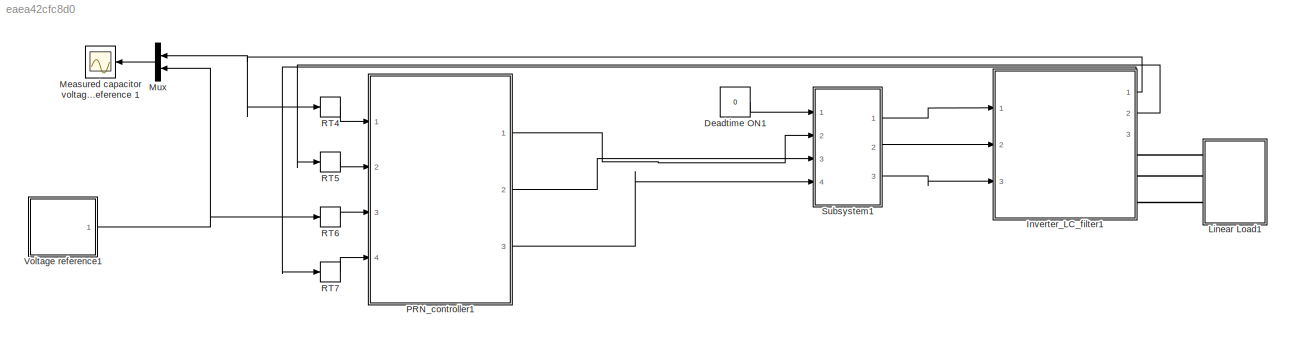
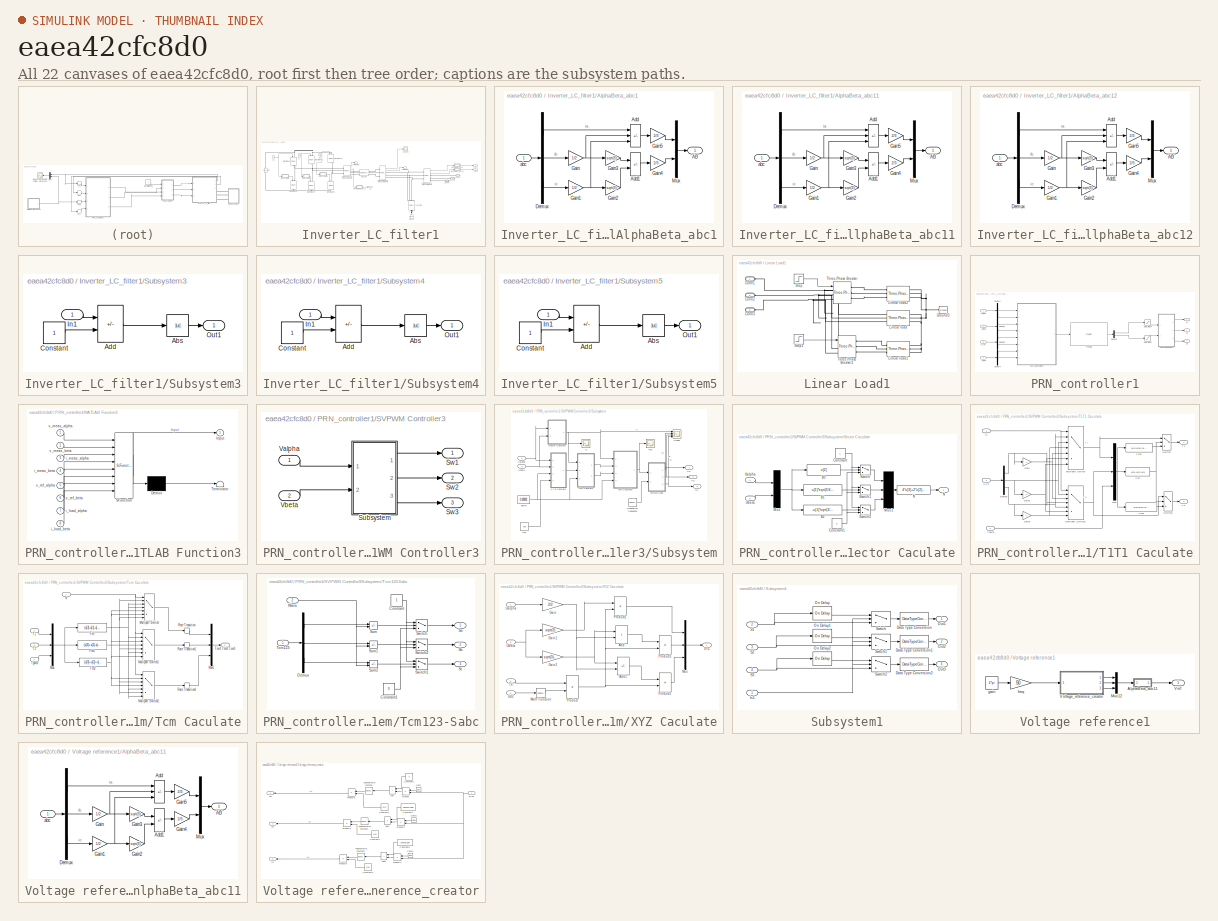
[diagram: thumbnail index - all 22 canvases of the model, root first then tree order]
MODEL slx_eaea42cfc8d0
KIND model
CONFIG AbsTol = auto
CONFIG EnableMultiTasking = off
CONFIG FixedStep = auto
CONFIG MaxStep = auto
CONFIG MinStep = auto
CONFIG RelTol = 1e-3
CONFIG SampleTimeConstraint = Unconstrained
CONFIG SolverName = VariableStepAuto
CONFIG StartTime = 0.0
CONFIG StopTime = 10.0
BLOCK [Constant] Deadtime ON1
  Value = 0
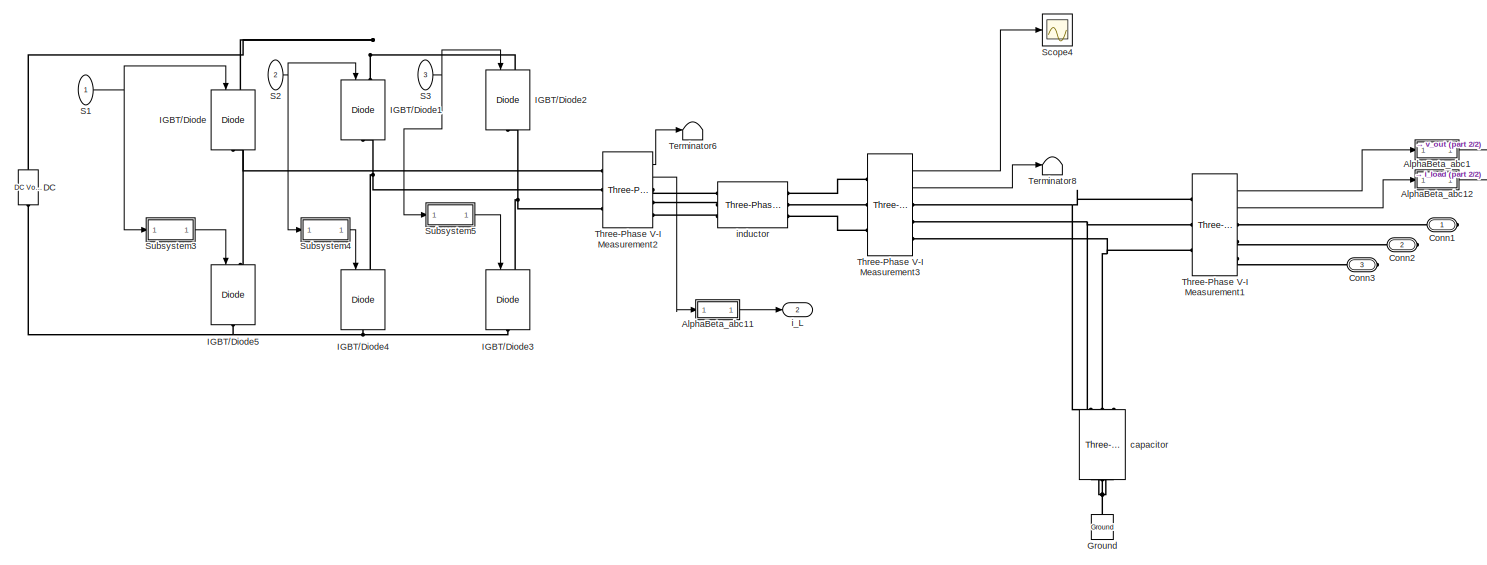
[diagram: Inverter_LC_filter1 - part 1/2, most of the canvas]
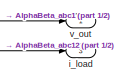
[diagram: Inverter_LC_filter1 - part 2/2, top right region]
BLOCK [SubSystem] Inverter_LC_filter1
  Ports = [3, 3, 0, 0, 0, 0, 3]
  RequestExecContextInheritance = off
BLOCK [SubSystem] Inverter_LC_filter1/AlphaBeta_abc1
  NameLocation = top
  Ports = [1, 1]
  RequestExecContextInheritance = off
BLOCK [Outport] Inverter_LC_filter1/AlphaBeta_abc1/AB
  VectorParamsAs1DForOutWhenUnconnected = off
BLOCK [Sum] Inverter_LC_filter1/AlphaBeta_abc1/Add
  IconShape = rectangular
  Inputs = +--
  Ports = [3, 1]
BLOCK [Sum] Inverter_LC_filter1/AlphaBeta_abc1/Add1
  IconShape = rectangular
  Inputs = +-
  Ports = [2, 1]
BLOCK [Demux] Inverter_LC_filter1/AlphaBeta_abc1/Demux
  Outputs = 3
  Ports = [1, 3]
BLOCK [Gain] Inverter_LC_filter1/AlphaBeta_abc1/Gain
  Gain = 1/2
BLOCK [Gain] Inverter_LC_filter1/AlphaBeta_abc1/Gain1
  Gain = 1/2
BLOCK [Gain] Inverter_LC_filter1/AlphaBeta_abc1/Gain2
  Gain = sqrt(3)
BLOCK [Gain] Inverter_LC_filter1/AlphaBeta_abc1/Gain3
  Gain = sqrt(3)
BLOCK [Gain] Inverter_LC_filter1/AlphaBeta_abc1/Gain4
  Gain = 2/3
BLOCK [Gain] Inverter_LC_filter1/AlphaBeta_abc1/Gain5
  Gain = 2/3
BLOCK [Mux] Inverter_LC_filter1/AlphaBeta_abc1/Mux
  DisplayOption = bar
  Inputs = 2
  Ports = [2, 1]
BLOCK [Inport] Inverter_LC_filter1/AlphaBeta_abc1/abc
BLOCK [SubSystem] Inverter_LC_filter1/AlphaBeta_abc11
  NameLocation = top
  Ports = [1, 1]
  RequestExecContextInheritance = off
BLOCK [Outport] Inverter_LC_filter1/AlphaBeta_abc11/AB
  VectorParamsAs1DForOutWhenUnconnected = off
BLOCK [Sum] Inverter_LC_filter1/AlphaBeta_abc11/Add
  IconShape = rectangular
  Inputs = +--
  Ports = [3, 1]
BLOCK [Sum] Inverter_LC_filter1/AlphaBeta_abc11/Add1
  IconShape = rectangular
  Inputs = +-
  Ports = [2, 1]
BLOCK [Demux] Inverter_LC_filter1/AlphaBeta_abc11/Demux
  Outputs = 3
  Ports = [1, 3]
BLOCK [Gain] Inverter_LC_filter1/AlphaBeta_abc11/Gain
  Gain = 1/2
BLOCK [Gain] Inverter_LC_filter1/AlphaBeta_abc11/Gain1
  Gain = 1/2
BLOCK [Gain] Inverter_LC_filter1/AlphaBeta_abc11/Gain2
  Gain = sqrt(3)
BLOCK [Gain] Inverter_LC_filter1/AlphaBeta_abc11/Gain3
  Gain = sqrt(3)
BLOCK [Gain] Inverter_LC_filter1/AlphaBeta_abc11/Gain4
  Gain = 2/3
BLOCK [Gain] Inverter_LC_filter1/AlphaBeta_abc11/Gain5
  Gain = 2/3
BLOCK [Mux] Inverter_LC_filter1/AlphaBeta_abc11/Mux
  DisplayOption = bar
  Inputs = 2
  Ports = [2, 1]
BLOCK [Inport] Inverter_LC_filter1/AlphaBeta_abc11/abc
BLOCK [SubSystem] Inverter_LC_filter1/AlphaBeta_abc12
  NameLocation = top
  Ports = [1, 1]
  RequestExecContextInheritance = off
BLOCK [Outport] Inverter_LC_filter1/AlphaBeta_abc12/AB
  VectorParamsAs1DForOutWhenUnconnected = off
BLOCK [Sum] Inverter_LC_filter1/AlphaBeta_abc12/Add
  IconShape = rectangular
  Inputs = +--
  Ports = [3, 1]
BLOCK [Sum] Inverter_LC_filter1/AlphaBeta_abc12/Add1
  IconShape = rectangular
  Inputs = +-
  Ports = [2, 1]
BLOCK [Demux] Inverter_LC_filter1/AlphaBeta_abc12/Demux
  Outputs = 3
  Ports = [1, 3]
BLOCK [Gain] Inverter_LC_filter1/AlphaBeta_abc12/Gain
  Gain = 1/2
BLOCK [Gain] Inverter_LC_filter1/AlphaBeta_abc12/Gain1
  Gain = 1/2
BLOCK [Gain] Inverter_LC_filter1/AlphaBeta_abc12/Gain2
  Gain = sqrt(3)
BLOCK [Gain] Inverter_LC_filter1/AlphaBeta_abc12/Gain3
  Gain = sqrt(3)
BLOCK [Gain] Inverter_LC_filter1/AlphaBeta_abc12/Gain4
  Gain = 2/3
BLOCK [Gain] Inverter_LC_filter1/AlphaBeta_abc12/Gain5
  Gain = 2/3
BLOCK [Mux] Inverter_LC_filter1/AlphaBeta_abc12/Mux
  DisplayOption = bar
  Inputs = 2
  Ports = [2, 1]
BLOCK [Inport] Inverter_LC_filter1/AlphaBeta_abc12/abc
BLOCK [PMIOPort] Inverter_LC_filter1/Conn1
  Side = Right
BLOCK [PMIOPort] Inverter_LC_filter1/Conn2
  Port = 2
  Side = Right
BLOCK [PMIOPort] Inverter_LC_filter1/Conn3
  Port = 3
  Side = Right
BLOCK [Reference] Inverter_LC_filter1/DC  REF=spsDCVoltageSourceLib/DC Voltage Source
  NameLocation = right
  Ports = [0, 0, 0, 0, 0, 1, 1]
  SourceBlock = spsDCVoltageSourceLib/DC Voltage Source
  SourceProductBaseCode = PS
  SourceType = DC Voltage Source
BLOCK [Reference] Inverter_LC_filter1/Ground  REF=spsGroundLib/Ground
  NameLocation = right
  Ports = [0, 0, 0, 0, 0, 1]
  SourceBlock = spsGroundLib/Ground
  SourceProductBaseCode = PS
  SourceType = Ground
BLOCK [Reference] Inverter_LC_filter1/IGBT//Diode  REF=spsIGBTDiodeLib/IGBT//Diode
  NameLocation = left
  Ports = [1, 0, 0, 0, 0, 1, 1]
  SourceBlock = spsIGBTDiodeLib/IGBT//Diode
  SourceProductBaseCode = PS
  SourceType = IGBT/Diode
BLOCK [Reference] Inverter_LC_filter1/IGBT//Diode1  REF=spsIGBTDiodeLib/IGBT//Diode
  NameLocation = left
  Ports = [1, 0, 0, 0, 0, 1, 1]
  SourceBlock = spsIGBTDiodeLib/IGBT//Diode
  SourceProductBaseCode = PS
  SourceType = IGBT/Diode
BLOCK [Reference] Inverter_LC_filter1/IGBT//Diode2  REF=spsIGBTDiodeLib/IGBT//Diode
  NameLocation = left
  Ports = [1, 0, 0, 0, 0, 1, 1]
  SourceBlock = spsIGBTDiodeLib/IGBT//Diode
  SourceProductBaseCode = PS
  SourceType = IGBT/Diode
BLOCK [Reference] Inverter_LC_filter1/IGBT//Diode3  REF=spsIGBTDiodeLib/IGBT//Diode
  NameLocation = left
  Ports = [1, 0, 0, 0, 0, 1, 1]
  SourceBlock = spsIGBTDiodeLib/IGBT//Diode
  SourceProductBaseCode = PS
  SourceType = IGBT/Diode
BLOCK [Reference] Inverter_LC_filter1/IGBT//Diode4  REF=spsIGBTDiodeLib/IGBT//Diode
  NameLocation = left
  Ports = [1, 0, 0, 0, 0, 1, 1]
  SourceBlock = spsIGBTDiodeLib/IGBT//Diode
  SourceProductBaseCode = PS
  SourceType = IGBT/Diode
BLOCK [Reference] Inverter_LC_filter1/IGBT//Diode5  REF=spsIGBTDiodeLib/IGBT//Diode
  NameLocation = left
  Ports = [1, 0, 0, 0, 0, 1, 1]
  SourceBlock = spsIGBTDiodeLib/IGBT//Diode
  SourceProductBaseCode = PS
  SourceType = IGBT/Diode
BLOCK [Inport] Inverter_LC_filter1/S1
  NameLocation = top
BLOCK [Inport] Inverter_LC_filter1/S2
  NameLocation = top
  Port = 2
BLOCK [Inport] Inverter_LC_filter1/S3
  NameLocation = top
  Port = 3
BLOCK [Scope] Inverter_LC_filter1/Scope4
  Floating = off
  NumInputPorts = 1
  Ports = [1]
  ScopeSpecificationString = Simulink.scopes.TimeScopeBlockCfg('CurrentConfiguration', extmgr.ConfigurationSet(extmgr.Configuration('Core','General UI',true),extmgr.Configuration('Core','Source UI',true),extmgr.Configuration('Sources','WiredSimulink',true,'DataLoggingVariableName','v_phase','DataLogging',true,'DataLoggingSaveFormat','Array'),extmgr.Configuration('Visuals','Time Domain',true,'SerializedDisplays',{struct('MinYL...<+1600ch>
BLOCK [SubSystem] Inverter_LC_filter1/Subsystem3
  Ports = [1, 1]
  RequestExecContextInheritance = off
BLOCK [Abs] Inverter_LC_filter1/Subsystem3/Abs
  SaturateOnIntegerOverflow = off
BLOCK [Sum] Inverter_LC_filter1/Subsystem3/Add
  IconShape = rectangular
  Inputs = +-
  Ports = [2, 1]
BLOCK [Constant] Inverter_LC_filter1/Subsystem3/Constant
BLOCK [Inport] Inverter_LC_filter1/Subsystem3/In1
BLOCK [Outport] Inverter_LC_filter1/Subsystem3/Out1
  VectorParamsAs1DForOutWhenUnconnected = off
BLOCK [SubSystem] Inverter_LC_filter1/Subsystem4
  Ports = [1, 1]
  RequestExecContextInheritance = off
BLOCK [Abs] Inverter_LC_filter1/Subsystem4/Abs
  SaturateOnIntegerOverflow = off
BLOCK [Sum] Inverter_LC_filter1/Subsystem4/Add
  IconShape = rectangular
  Inputs = +-
  Ports = [2, 1]
BLOCK [Constant] Inverter_LC_filter1/Subsystem4/Constant
BLOCK [Inport] Inverter_LC_filter1/Subsystem4/In1
BLOCK [Outport] Inverter_LC_filter1/Subsystem4/Out1
  VectorParamsAs1DForOutWhenUnconnected = off
BLOCK [SubSystem] Inverter_LC_filter1/Subsystem5
  Ports = [1, 1]
  RequestExecContextInheritance = off
BLOCK [Abs] Inverter_LC_filter1/Subsystem5/Abs
  SaturateOnIntegerOverflow = off
BLOCK [Sum] Inverter_LC_filter1/Subsystem5/Add
  IconShape = rectangular
  Inputs = +-
  Ports = [2, 1]
BLOCK [Constant] Inverter_LC_filter1/Subsystem5/Constant
BLOCK [Inport] Inverter_LC_filter1/Subsystem5/In1
BLOCK [Outport] Inverter_LC_filter1/Subsystem5/Out1
  VectorParamsAs1DForOutWhenUnconnected = off
BLOCK [Terminator] Inverter_LC_filter1/Terminator6
BLOCK [Terminator] Inverter_LC_filter1/Terminator8
BLOCK [Reference] Inverter_LC_filter1/Three-Phase V-I Measurement1  REF=spsThreePhaseVIMeasurementLib/Three-Phase
V-I Measurement
  Ports = [0, 2, 0, 0, 0, 3, 3]
  SourceBlock = spsThreePhaseVIMeasurementLib/Three-Phase\nV-I Measurement
  SourceProductBaseCode = PS
  SourceType = Three-Phase VI Measurement
BLOCK [Reference] Inverter_LC_filter1/Three-Phase V-I Measurement2  REF=spsThreePhaseVIMeasurementLib/Three-Phase
V-I Measurement
  Ports = [0, 2, 0, 0, 0, 3, 3]
  SourceBlock = spsThreePhaseVIMeasurementLib/Three-Phase\nV-I Measurement
  SourceProductBaseCode = PS
  SourceType = Three-Phase VI Measurement
BLOCK [Reference] Inverter_LC_filter1/Three-Phase V-I Measurement3  REF=spsThreePhaseVIMeasurementLib/Three-Phase
V-I Measurement
  Ports = [0, 2, 0, 0, 0, 3, 3]
  SourceBlock = spsThreePhaseVIMeasurementLib/Three-Phase\nV-I Measurement
  SourceProductBaseCode = PS
  SourceType = Three-Phase VI Measurement
BLOCK [Reference] Inverter_LC_filter1/capacitor  REF=spsThreePhaseSeriesRLCBranchLib/Three-Phase
Series RLC Branch
  AttributesFormatString = \n
  NameLocation = left
  Ports = [0, 0, 0, 0, 0, 3, 3]
  SourceBlock = spsThreePhaseSeriesRLCBranchLib/Three-Phase\nSeries RLC Branch
  SourceProductBaseCode = PS
  SourceType = Three-Phase Series RLC Branch
BLOCK [Outport] Inverter_LC_filter1/i_L
  Port = 2
  VectorParamsAs1DForOutWhenUnconnected = off
BLOCK [Outport] Inverter_LC_filter1/i_load
  Port = 3
  VectorParamsAs1DForOutWhenUnconnected = off
BLOCK [Reference] Inverter_LC_filter1/inductor  REF=spsThreePhaseSeriesRLCBranchLib/Three-Phase
Series RLC Branch
  AttributesFormatString = \n
  Ports = [0, 0, 0, 0, 0, 3, 3]
  SourceBlock = spsThreePhaseSeriesRLCBranchLib/Three-Phase\nSeries RLC Branch
  SourceProductBaseCode = PS
  SourceType = Three-Phase Series RLC Branch
BLOCK [Outport] Inverter_LC_filter1/v_out
  VectorParamsAs1DForOutWhenUnconnected = off
BLOCK [SubSystem] Linear Load1
  Ports = [0, 0, 0, 0, 0, 3]
  RequestExecContextInheritance = off
BLOCK [PMIOPort] Linear Load1/Conn1
  Side = Left
BLOCK [PMIOPort] Linear Load1/Conn2
  Port = 2
  Side = Left
BLOCK [PMIOPort] Linear Load1/Conn3
  Port = 3
  Side = Left
BLOCK [Reference] Linear Load1/Ground3  REF=spsGroundLib/Ground
  NameLocation = top
  Ports = [0, 0, 0, 0, 0, 1]
  SourceBlock = spsGroundLib/Ground
  SourceProductBaseCode = PS
  SourceType = Ground
BLOCK [Reference] Linear Load1/Linear load  REF=spsThreePhaseSeriesRLCBranchLib/Three-Phase
Series RLC Branch
  AttributesFormatString = \n
  Ports = [0, 0, 0, 0, 0, 3, 3]
  SourceBlock = spsThreePhaseSeriesRLCBranchLib/Three-Phase\nSeries RLC Branch
  SourceProductBaseCode = PS
  SourceType = Three-Phase Series RLC Branch
BLOCK [Reference] Linear Load1/Linear load1  REF=spsThreePhaseSeriesRLCBranchLib/Three-Phase
Series RLC Branch
  AttributesFormatString = \n
  Ports = [0, 0, 0, 0, 0, 3, 3]
  SourceBlock = spsThreePhaseSeriesRLCBranchLib/Three-Phase\nSeries RLC Branch
  SourceProductBaseCode = PS
  SourceType = Three-Phase Series RLC Branch
BLOCK [Reference] Linear Load1/Linear load2  REF=spsThreePhaseSeriesRLCBranchLib/Three-Phase
Series RLC Branch
  AttributesFormatString = \n
  Ports = [0, 0, 0, 0, 0, 3, 3]
  SourceBlock = spsThreePhaseSeriesRLCBranchLib/Three-Phase\nSeries RLC Branch
  SourceProductBaseCode = PS
  SourceType = Three-Phase Series RLC Branch
BLOCK [Step] Linear Load1/Step
  SampleTime = 0
  Time = 0.04
BLOCK [Step] Linear Load1/Step1
  SampleTime = 0
  Time = 0.07
BLOCK [Reference] Linear Load1/Three-Phase Breaker  REF=spsThreePhaseBreakerLib/Three-Phase Breaker
  Ports = [1, 0, 0, 0, 0, 3, 3]
  SourceBlock = spsThreePhaseBreakerLib/Three-Phase Breaker
  SourceProductBaseCode = PS
  SourceType = Three-Phase Breaker
BLOCK [Reference] Linear Load1/Three-Phase Breaker1  REF=spsThreePhaseBreakerLib/Three-Phase Breaker
  Ports = [1, 0, 0, 0, 0, 3, 3]
  SourceBlock = spsThreePhaseBreakerLib/Three-Phase Breaker
  SourceProductBaseCode = PS
  SourceType = Three-Phase Breaker
BLOCK [Scope] Measured capacitor voltage and reference 1
  Floating = off
  NameLocation = top
  NumInputPorts = 1
  Ports = [1]
  ScopeSpecificationString = Simulink.scopes.TimeScopeBlockCfg('CurrentConfiguration', extmgr.ConfigurationSet(extmgr.Configuration('Core','General UI',true,'FigureColor',[0 0 0]),extmgr.Configuration('Core','Source UI',true),extmgr.Configuration('Sources','WiredSimulink',true,'DataLoggingVariableName','ScopeData1','DataLogging',true),extmgr.Configuration('Visuals','Time Domain',true,'SerializedDisplays',{struct('MinYLimReal'...<+1583ch>
BLOCK [Mux] Mux
  DisplayOption = bar
  Inputs = 2
  NameLocation = top
  Ports = [2, 1]
BLOCK [SubSystem] PRN_controller1
  Ports = [4, 3]
  RequestExecContextInheritance = off
  SystemSampleTime = Ts
BLOCK [Demux] PRN_controller1/Demux1
  Outputs = 2
  Ports = [1, 2]
BLOCK [Demux] PRN_controller1/Demux2
  Outputs = 2
  Ports = [1, 2]
BLOCK [Demux] PRN_controller1/Demux3
  Outputs = 2
  Ports = [1, 2]
BLOCK [Demux] PRN_controller1/Demux4
  Outputs = 2
  Ports = [1, 2]
BLOCK [Demux] PRN_controller1/Demux5
  Outputs = 2
  Ports = [1, 2]
BLOCK [Inport] PRN_controller1/I_meas
  Port = 2
BLOCK [SubSystem] PRN_controller1/MATLAB Function3
  ErrorFcn = Stateflow.Translate.translate
  PermitHierarchicalResolution = ExplicitOnly
  Ports = [8, 1]
  RequestExecContextInheritance = off
  SFBlockType = MATLAB Function
  SystemSampleTime = 1e-5
  TreatAsAtomicUnit = on
BLOCK [Demux] PRN_controller1/MATLAB Function3/ Demux 
  Outputs = 1
  Ports = [1, 1]
BLOCK [S-Function] PRN_controller1/MATLAB Function3/ SFunction 
  EnableBusSupport = on
  FunctionName = sf_sfun
  PortCounts = [8 2]
  Ports = [8, 2]
  SFcnIsStateOwnerBlock = off
  SFunctionDeploymentMode = off
  Tag = Stateflow S-Function 39
BLOCK [Terminator] PRN_controller1/MATLAB Function3/ Terminator 
BLOCK [Outport] PRN_controller1/MATLAB Function3/Input
BLOCK [Inport] PRN_controller1/MATLAB Function3/i_load_alpha
  Port = 7
BLOCK [Inport] PRN_controller1/MATLAB Function3/i_load_beta
  Port = 8
BLOCK [Inport] PRN_controller1/MATLAB Function3/i_meas_alpha
  Port = 3
BLOCK [Inport] PRN_controller1/MATLAB Function3/i_meas_beta
  Port = 4
BLOCK [Inport] PRN_controller1/MATLAB Function3/v_meas_alpha
BLOCK [Inport] PRN_controller1/MATLAB Function3/v_meas_beta
  Port = 2
BLOCK [Inport] PRN_controller1/MATLAB Function3/v_ref_alpha
  Port = 5
BLOCK [Inport] PRN_controller1/MATLAB Function3/v_ref_beta
  Port = 6
BLOCK [Reference] PRN_controller1/Predict1  REF=deeplib/Predict
  Ports = [1, 1]
  SourceBlock = deeplib/Predict
  SourceProductBaseCode = NN
  SourceType = Predict
BLOCK [Outport] PRN_controller1/S1
  VectorParamsAs1DForOutWhenUnconnected = off
BLOCK [Outport] PRN_controller1/S2
  Port = 2
  VectorParamsAs1DForOutWhenUnconnected = off
BLOCK [Outport] PRN_controller1/S3
  Port = 3
  VectorParamsAs1DForOutWhenUnconnected = off
BLOCK [SubSystem] PRN_controller1/SVPWM Controller3
  Ports = [2, 3]
  RequestExecContextInheritance = off
BLOCK [SubSystem] PRN_controller1/SVPWM Controller3/Subsystem
  Ports = [2, 3]
  RequestExecContextInheritance = off
BLOCK [Scope] PRN_controller1/SVPWM Controller3/Subsystem/N
  Floating = off
  NumInputPorts = 1
  Ports = [1]
  ScopeSpecificationString = Simulink.scopes.TimeScopeBlockCfg('CurrentConfiguration', extmgr.ConfigurationSet(extmgr.Configuration('Core','General UI',true),extmgr.Configuration('Core','Source UI',true),extmgr.Configuration('Sources','WiredSimulink',true,'DataLogging',true,'DataLoggingVariableName','N','DataLoggingSaveFormat','StructureWithTime','SampleTime','0','DataLoggingDecimation','1','DataLoggingDecimateData',true),ext...<+1697ch>
BLOCK [Reference] PRN_controller1/SVPWM Controller3/Subsystem/Repeating Sequence  REF=simulink/Sources/Repeating
Sequence
  Ports = [0, 1]
  SourceBlock = simulink/Sources/Repeating\nSequence
  SourceProductBaseCode = SL
  SourceType = Repeating table
BLOCK [Outport] PRN_controller1/SVPWM Controller3/Subsystem/Sa
BLOCK [Outport] PRN_controller1/SVPWM Controller3/Subsystem/Sb
  Port = 2
BLOCK [Outport] PRN_controller1/SVPWM Controller3/Subsystem/Sc
  Port = 3
BLOCK [Scope] PRN_controller1/SVPWM Controller3/Subsystem/Scope
  Floating = off
  NumInputPorts = 4
  Ports = [4]
  ScopeSpecificationString = Simulink.scopes.TimeScopeBlockCfg('CurrentConfiguration', extmgr.ConfigurationSet(extmgr.Configuration('Core','General UI',true),extmgr.Configuration('Core','Source UI',true),extmgr.Configuration('Sources','WiredSimulink',true),extmgr.Configuration('Visuals','Time Domain',true,'SerializedDisplays',{struct('MinYLimReal','-0.75','MaxYLimReal','6.75','YLabelReal','','MinYLimMag','0.00000','MaxYLimMag...<+3335ch>
BLOCK [SubSystem] PRN_controller1/SVPWM Controller3/Subsystem/Sector Caculate
  Ports = [2, 1]
  RequestExecContextInheritance = off
BLOCK [Fcn] PRN_controller1/SVPWM Controller3/Subsystem/Sector Caculate/B0
  Expr = u[2]
BLOCK [Fcn] PRN_controller1/SVPWM Controller3/Subsystem/Sector Caculate/B1
  Expr = u[1]*sqrt(3/4)-0.5*u[2]
BLOCK [Fcn] PRN_controller1/SVPWM Controller3/Subsystem/Sector Caculate/B2
  Expr = -u[1]*sqrt(3/4)-u[2]*0.5
BLOCK [Constant] PRN_controller1/SVPWM Controller3/Subsystem/Sector Caculate/Constant
BLOCK [Constant] PRN_controller1/SVPWM Controller3/Subsystem/Sector Caculate/Constant1
  Value = 0
BLOCK [Mux] PRN_controller1/SVPWM Controller3/Subsystem/Sector Caculate/Mux
  Inputs = 2
  Ports = [2, 1]
BLOCK [Mux] PRN_controller1/SVPWM Controller3/Subsystem/Sector Caculate/Mux1
  Inputs = 3
  Ports = [3, 1]
BLOCK [Fcn] PRN_controller1/SVPWM Controller3/Subsystem/Sector Caculate/N
  Expr = 4*u[3]+2*u[2]+u[1]
BLOCK [Outport] PRN_controller1/SVPWM Controller3/Subsystem/Sector Caculate/N 
BLOCK [Switch] PRN_controller1/SVPWM Controller3/Subsystem/Sector Caculate/Switch
  InputSameDT = off
  SaturateOnIntegerOverflow = off
BLOCK [Switch] PRN_controller1/SVPWM Controller3/Subsystem/Sector Caculate/Switch1
  InputSameDT = off
  SaturateOnIntegerOverflow = off
BLOCK [Switch] PRN_controller1/SVPWM Controller3/Subsystem/Sector Caculate/Switch2
  InputSameDT = off
  SaturateOnIntegerOverflow = off
BLOCK [Inport] PRN_controller1/SVPWM Controller3/Subsystem/Sector Caculate/Ualpha
BLOCK [Inport] PRN_controller1/SVPWM Controller3/Subsystem/Sector Caculate/Ubeta
  Port = 2
BLOCK [SubSystem] PRN_controller1/SVPWM Controller3/Subsystem/T1T1 Caculate
  Ports = [3, 2]
  RequestExecContextInheritance = off
BLOCK [Demux] PRN_controller1/SVPWM Controller3/Subsystem/T1T1 Caculate/Demux
  Outputs = 3
  Ports = [1, 3]
BLOCK [Fcn] PRN_controller1/SVPWM Controller3/Subsystem/T1T1 Caculate/Fcn
  Expr = u(3)-u(2)-u(1)
BLOCK [Fcn] PRN_controller1/SVPWM Controller3/Subsystem/T1T1 Caculate/Fcn1
  Expr = u(1)*u(3)/(u(1)+u(2))
BLOCK [Fcn] PRN_controller1/SVPWM Controller3/Subsystem/T1T1 Caculate/Fcn2
  Expr = u(2)*u(3)/(u(1)+u(2))
BLOCK [Gain] PRN_controller1/SVPWM Controller3/Subsystem/T1T1 Caculate/Gain
  Gain = -1
BLOCK [Gain] PRN_controller1/SVPWM Controller3/Subsystem/T1T1 Caculate/Gain1
  Gain = -1
BLOCK [Gain] PRN_controller1/SVPWM Controller3/Subsystem/T1T1 Caculate/Gain2
  Gain = -1
BLOCK [MultiPortSwitch] PRN_controller1/SVPWM Controller3/Subsystem/T1T1 Caculate/Multiport Switch
  InputSameDT = off
  Inputs = 6
  Ports = [7, 1]
  SaturateOnIntegerOverflow = off
BLOCK [MultiPortSwitch] PRN_controller1/SVPWM Controller3/Subsystem/T1T1 Caculate/Multiport Switch1
  InputSameDT = off
  Inputs = 6
  Ports = [7, 1]
  SaturateOnIntegerOverflow = off
BLOCK [Mux] PRN_controller1/SVPWM Controller3/Subsystem/T1T1 Caculate/Mux
  DisplayOption = bar
  Inputs = 3
  Ports = [3, 1]
BLOCK [Inport] PRN_controller1/SVPWM Controller3/Subsystem/T1T1 Caculate/N
BLOCK [Switch] PRN_controller1/SVPWM Controller3/Subsystem/T1T1 Caculate/Switch
  InputSameDT = off
  SaturateOnIntegerOverflow = off
BLOCK [Switch] PRN_controller1/SVPWM Controller3/Subsystem/T1T1 Caculate/Switch1
  Criteria = u2 > Threshold
  InputSameDT = off
  SaturateOnIntegerOverflow = off
BLOCK [Outport] PRN_controller1/SVPWM Controller3/Subsystem/T1T1 Caculate/T1
BLOCK [Outport] PRN_controller1/SVPWM Controller3/Subsystem/T1T1 Caculate/T2
  Port = 2
BLOCK [Inport] PRN_controller1/SVPWM Controller3/Subsystem/T1T1 Caculate/Tpwm
  Port = 3
BLOCK [Inport] PRN_controller1/SVPWM Controller3/Subsystem/T1T1 Caculate/XYZ
  Port = 2
BLOCK [Scope] PRN_controller1/SVPWM Controller3/Subsystem/Tcm
  Floating = off
  NumInputPorts = 1
  Ports = [1]
  ScopeSpecificationString = Simulink.scopes.TimeScopeBlockCfg('CurrentConfiguration', extmgr.ConfigurationSet(extmgr.Configuration('Core','General UI',true),extmgr.Configuration('Core','Source UI',true),extmgr.Configuration('Sources','WiredSimulink',true,'DataLogging',true,'DataLoggingVariableName','Tcm','DataLoggingSaveFormat','StructureWithTime','SampleTime','0','DataLoggingDecimation','1','DataLoggingDecimateData',true),e...<+1769ch>
BLOCK [SubSystem] PRN_controller1/SVPWM Controller3/Subsystem/Tcm Caculate
  Ports = [4, 1]
  RequestExecContextInheritance = off
BLOCK [Fcn] PRN_controller1/SVPWM Controller3/Subsystem/Tcm Caculate/Fcn
  Expr = (u[3]-u[1]-u[2])/4
BLOCK [Fcn] PRN_controller1/SVPWM Controller3/Subsystem/Tcm Caculate/Fcn1
  Expr = (u[3]+u[1]-u[2])/4
BLOCK [Fcn] PRN_controller1/SVPWM Controller3/Subsystem/Tcm Caculate/Fcn2
  Expr = (u[3]+u[2]+u[1])/4
BLOCK [MultiPortSwitch] PRN_controller1/SVPWM Controller3/Subsystem/Tcm Caculate/Multiport Switch
  InputSameDT = off
  Inputs = 6
  Ports = [7, 1]
  SaturateOnIntegerOverflow = off
BLOCK [MultiPortSwitch] PRN_controller1/SVPWM Controller3/Subsystem/Tcm Caculate/Multiport Switch1
  InputSameDT = off
  Inputs = 6
  Ports = [7, 1]
  SaturateOnIntegerOverflow = off
BLOCK [MultiPortSwitch] PRN_controller1/SVPWM Controller3/Subsystem/Tcm Caculate/Multiport Switch2
  InputSameDT = off
  Inputs = 6
  Ports = [7, 1]
  SaturateOnIntegerOverflow = off
BLOCK [Mux] PRN_controller1/SVPWM Controller3/Subsystem/Tcm Caculate/Mux
  DisplayOption = bar
  Inputs = 3
  Ports = [3, 1]
BLOCK [Mux] PRN_controller1/SVPWM Controller3/Subsystem/Tcm Caculate/Mux1
  DisplayOption = bar
  Inputs = 3
  Ports = [3, 1]
BLOCK [Inport] PRN_controller1/SVPWM Controller3/Subsystem/Tcm Caculate/N
BLOCK [RateTransition] PRN_controller1/SVPWM Controller3/Subsystem/Tcm Caculate/Rate Transition
  OutPortSampleTime = 2e-6
BLOCK [RateTransition] PRN_controller1/SVPWM Controller3/Subsystem/Tcm Caculate/Rate Transition1
  OutPortSampleTime = 2e-6
BLOCK [RateTransition] PRN_controller1/SVPWM Controller3/Subsystem/Tcm Caculate/Rate Transition2
  OutPortSampleTime = 2e-6
BLOCK [Inport] PRN_controller1/SVPWM Controller3/Subsystem/Tcm Caculate/T1
  Port = 2
BLOCK [Inport] PRN_controller1/SVPWM Controller3/Subsystem/Tcm Caculate/T2
  Port = 3
BLOCK [Outport] PRN_controller1/SVPWM Controller3/Subsystem/Tcm Caculate/Tcm1 Tcm2 Tcm3
BLOCK [Inport] PRN_controller1/SVPWM Controller3/Subsystem/Tcm Caculate/Tpwm
  Port = 4
BLOCK [SubSystem] PRN_controller1/SVPWM Controller3/Subsystem/Tcm123-Sabc
  Ports = [2, 3]
  RequestExecContextInheritance = off
BLOCK [Constant] PRN_controller1/SVPWM Controller3/Subsystem/Tcm123-Sabc/Constant
BLOCK [Constant] PRN_controller1/SVPWM Controller3/Subsystem/Tcm123-Sabc/Constant1
  Value = 0
BLOCK [Demux] PRN_controller1/SVPWM Controller3/Subsystem/Tcm123-Sabc/Demux
  Outputs = 3
  Ports = [1, 3]
BLOCK [Outport] PRN_controller1/SVPWM Controller3/Subsystem/Tcm123-Sabc/Sa
BLOCK [Outport] PRN_controller1/SVPWM Controller3/Subsystem/Tcm123-Sabc/Sb
  Port = 2
BLOCK [Outport] PRN_controller1/SVPWM Controller3/Subsystem/Tcm123-Sabc/Sc
  Port = 3
BLOCK [Sum] PRN_controller1/SVPWM Controller3/Subsystem/Tcm123-Sabc/Sum
  IconShape = rectangular
  Inputs = -+
  Ports = [2, 1]
  SaturateOnIntegerOverflow = on
BLOCK [Sum] PRN_controller1/SVPWM Controller3/Subsystem/Tcm123-Sabc/Sum1
  IconShape = rectangular
  Inputs = -+
  Ports = [2, 1]
  SaturateOnIntegerOverflow = on
BLOCK [Sum] PRN_controller1/SVPWM Controller3/Subsystem/Tcm123-Sabc/Sum2
  IconShape = rectangular
  Inputs = -+
  Ports = [2, 1]
  SaturateOnIntegerOverflow = on
BLOCK [Switch] PRN_controller1/SVPWM Controller3/Subsystem/Tcm123-Sabc/Switch
  InputSameDT = off
BLOCK [Switch] PRN_controller1/SVPWM Controller3/Subsystem/Tcm123-Sabc/Switch1
  InputSameDT = off
BLOCK [Switch] PRN_controller1/SVPWM Controller3/Subsystem/Tcm123-Sabc/Switch2
  InputSameDT = off
BLOCK [Inport] PRN_controller1/SVPWM Controller3/Subsystem/Tcm123-Sabc/Tcm123
BLOCK [Inport] PRN_controller1/SVPWM Controller3/Subsystem/Tcm123-Sabc/Wave
  Port = 2
BLOCK [Constant] PRN_controller1/SVPWM Controller3/Subsystem/Tpwm
  Value = 0.00002
BLOCK [Inport] PRN_controller1/SVPWM Controller3/Subsystem/Ualpha
BLOCK [Inport] PRN_controller1/SVPWM Controller3/Subsystem/Ubeta
  Port = 2
BLOCK [Constant] PRN_controller1/SVPWM Controller3/Subsystem/Udc
  Value = Vdc
BLOCK [SubSystem] PRN_controller1/SVPWM Controller3/Subsystem/XYZ Caculate
  Ports = [4, 1]
  RequestExecContextInheritance = off
BLOCK [Sum] PRN_controller1/SVPWM Controller3/Subsystem/XYZ Caculate/Add
  IconShape = rectangular
  Ports = [2, 1]
BLOCK [Sum] PRN_controller1/SVPWM Controller3/Subsystem/XYZ Caculate/Add1
  IconShape = rectangular
  Inputs = +-
  Ports = [2, 1]
BLOCK [Gain] PRN_controller1/SVPWM Controller3/Subsystem/XYZ Caculate/Gain
  Gain = 3/2
BLOCK [Gain] PRN_controller1/SVPWM Controller3/Subsystem/XYZ Caculate/Gain1
  Gain = sqrt(3)
BLOCK [Gain] PRN_controller1/SVPWM Controller3/Subsystem/XYZ Caculate/Gain2
  Gain = sqrt(3)/2
BLOCK [Math] PRN_controller1/SVPWM Controller3/Subsystem/XYZ Caculate/Math Function
  Operator = reciprocal
  Ports = [1, 1]
  SignedPower = on
BLOCK [Mux] PRN_controller1/SVPWM Controller3/Subsystem/XYZ Caculate/Mux
  DisplayOption = bar
  Inputs = 3
  Ports = [3, 1]
BLOCK [Product] PRN_controller1/SVPWM Controller3/Subsystem/XYZ Caculate/Product
  Ports = [2, 1]
  RndMeth = Zero
BLOCK [Product] PRN_controller1/SVPWM Controller3/Subsystem/XYZ Caculate/Product1
  Ports = [2, 1]
  RndMeth = Zero
BLOCK [Product] PRN_controller1/SVPWM Controller3/Subsystem/XYZ Caculate/Product2
  Ports = [2, 1]
  RndMeth = Zero
BLOCK [Product] PRN_controller1/SVPWM Controller3/Subsystem/XYZ Caculate/Product3
  Ports = [2, 1]
  RndMeth = Zero
BLOCK [Inport] PRN_controller1/SVPWM Controller3/Subsystem/XYZ Caculate/Ts
  Port = 3
BLOCK [Inport] PRN_controller1/SVPWM Controller3/Subsystem/XYZ Caculate/Ualpha
BLOCK [Inport] PRN_controller1/SVPWM Controller3/Subsystem/XYZ Caculate/Ubeta
  Port = 2
BLOCK [Inport] PRN_controller1/SVPWM Controller3/Subsystem/XYZ Caculate/Udc
  Port = 4
BLOCK [Outport] PRN_controller1/SVPWM Controller3/Subsystem/XYZ Caculate/XYZ
BLOCK [Outport] PRN_controller1/SVPWM Controller3/Sw1
  VectorParamsAs1DForOutWhenUnconnected = off
BLOCK [Outport] PRN_controller1/SVPWM Controller3/Sw2
  Port = 2
  VectorParamsAs1DForOutWhenUnconnected = off
BLOCK [Outport] PRN_controller1/SVPWM Controller3/Sw3
  Port = 3
  VectorParamsAs1DForOutWhenUnconnected = off
BLOCK [Inport] PRN_controller1/SVPWM Controller3/Valpha
BLOCK [Inport] PRN_controller1/SVPWM Controller3/Vbeta
  Port = 2
BLOCK [Saturate] PRN_controller1/Saturation2
  LowerLimit = -467
  UpperLimit = 467
BLOCK [Saturate] PRN_controller1/Saturation4
  LowerLimit = -467
  UpperLimit = 467
BLOCK [Inport] PRN_controller1/V_meas
BLOCK [Inport] PRN_controller1/i_load
  Port = 4
BLOCK [Inport] PRN_controller1/v_ref
  Port = 3
BLOCK [RateTransition] RT4
  NameLocation = top
  OutPortSampleTime = Tsa
BLOCK [RateTransition] RT5
  NameLocation = top
  OutPortSampleTime = Tsa
BLOCK [RateTransition] RT6
  NameLocation = top
  OutPortSampleTime = Tsa
BLOCK [RateTransition] RT7
  NameLocation = top
  OutPortSampleTime = Tsa
BLOCK [SubSystem] Subsystem1
  Ports = [4, 3]
  RequestExecContextInheritance = off
BLOCK [DataTypeConversion] Subsystem1/Data Type Conversion
  OutDataTypeStr = double
  RndMeth = Floor
  SaturateOnIntegerOverflow = off
BLOCK [DataTypeConversion] Subsystem1/Data Type Conversion1
  OutDataTypeStr = double
  RndMeth = Floor
  SaturateOnIntegerOverflow = off
BLOCK [DataTypeConversion] Subsystem1/Data Type Conversion2
  OutDataTypeStr = double
  RndMeth = Floor
  SaturateOnIntegerOverflow = off
BLOCK [Inport] Subsystem1/In1
BLOCK [Reference] Subsystem1/On Delay  REF=spsOnDelayLib/On Delay
  Ports = [1, 1]
  SourceBlock = spsOnDelayLib/On Delay
  SourceProductBaseCode = PS
  SourceType = On/Off Delay
BLOCK [Reference] Subsystem1/On Delay1  REF=spsOnDelayLib/On Delay
  Ports = [1, 1]
  SourceBlock = spsOnDelayLib/On Delay
  SourceProductBaseCode = PS
  SourceType = On/Off Delay
BLOCK [Reference] Subsystem1/On Delay2  REF=spsOnDelayLib/On Delay
  Ports = [1, 1]
  SourceBlock = spsOnDelayLib/On Delay
  SourceProductBaseCode = PS
  SourceType = On/Off Delay
BLOCK [Outport] Subsystem1/Out1
BLOCK [Outport] Subsystem1/Out2
  Port = 2
BLOCK [Outport] Subsystem1/Out3
  Port = 3
BLOCK [Inport] Subsystem1/S1
  Port = 2
BLOCK [Inport] Subsystem1/S2
  Port = 3
BLOCK [Inport] Subsystem1/S3
  Port = 4
BLOCK [Switch] Subsystem1/Switch
  Criteria = u2 > Threshold
  InputSameDT = off
  SaturateOnIntegerOverflow = off
BLOCK [Switch] Subsystem1/Switch1
  Criteria = u2 > Threshold
  InputSameDT = off
  SaturateOnIntegerOverflow = off
BLOCK [Switch] Subsystem1/Switch2
  Criteria = u2 > Threshold
  InputSameDT = off
  SaturateOnIntegerOverflow = off
BLOCK [SubSystem] Voltage reference1
  Ports = [0, 1]
  RequestExecContextInheritance = off
BLOCK [SubSystem] Voltage reference1/AlphaBeta_abc11
  NameLocation = top
  Ports = [1, 1]
  RequestExecContextInheritance = off
BLOCK [Outport] Voltage reference1/AlphaBeta_abc11/AB
  VectorParamsAs1DForOutWhenUnconnected = off
BLOCK [Sum] Voltage reference1/AlphaBeta_abc11/Add
  IconShape = rectangular
  Inputs = +--
  Ports = [3, 1]
BLOCK [Sum] Voltage reference1/AlphaBeta_abc11/Add1
  IconShape = rectangular
  Inputs = +-
  Ports = [2, 1]
BLOCK [Demux] Voltage reference1/AlphaBeta_abc11/Demux
  Outputs = 3
  Ports = [1, 3]
BLOCK [Gain] Voltage reference1/AlphaBeta_abc11/Gain
  Gain = 1/2
BLOCK [Gain] Voltage reference1/AlphaBeta_abc11/Gain1
  Gain = 1/2
BLOCK [Gain] Voltage reference1/AlphaBeta_abc11/Gain2
  Gain = sqrt(3)
BLOCK [Gain] Voltage reference1/AlphaBeta_abc11/Gain3
  Gain = sqrt(3)
BLOCK [Gain] Voltage reference1/AlphaBeta_abc11/Gain4
  Gain = 2/3
BLOCK [Gain] Voltage reference1/AlphaBeta_abc11/Gain5
  Gain = 2/3
BLOCK [Mux] Voltage reference1/AlphaBeta_abc11/Mux
  DisplayOption = bar
  Inputs = 2
  Ports = [2, 1]
BLOCK [Inport] Voltage reference1/AlphaBeta_abc11/abc
BLOCK [Mux] Voltage reference1/Mux12
  DisplayOption = bar
  Inputs = 3
  Ports = [3, 1]
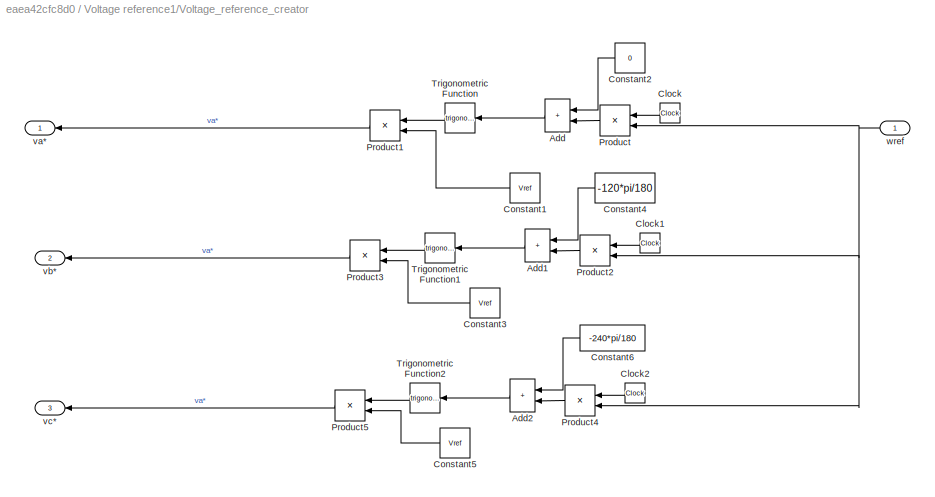
BLOCK [SubSystem] Voltage reference1/Voltage_reference_creator
  Ports = [1, 3]
  RequestExecContextInheritance = off
BLOCK [Sum] Voltage reference1/Voltage_reference_creator/Add
  IconShape = rectangular
  NameLocation = top
  Ports = [2, 1]
BLOCK [Sum] Voltage reference1/Voltage_reference_creator/Add1
  IconShape = rectangular
  NameLocation = top
  Ports = [2, 1]
BLOCK [Sum] Voltage reference1/Voltage_reference_creator/Add2
  IconShape = rectangular
  NameLocation = top
  Ports = [2, 1]
BLOCK [Clock] Voltage reference1/Voltage_reference_creator/Clock
  NameLocation = top
BLOCK [Clock] Voltage reference1/Voltage_reference_creator/Clock1
  NameLocation = top
BLOCK [Clock] Voltage reference1/Voltage_reference_creator/Clock2
  NameLocation = top
BLOCK [Constant] Voltage reference1/Voltage_reference_creator/Constant1
  NameLocation = top
  Value = Vref
BLOCK [Constant] Voltage reference1/Voltage_reference_creator/Constant2
  NameLocation = top
  Value = 0
BLOCK [Constant] Voltage reference1/Voltage_reference_creator/Constant3
  NameLocation = top
  Value = Vref
BLOCK [Constant] Voltage reference1/Voltage_reference_creator/Constant4
  NameLocation = top
  Value = -120*pi/180
BLOCK [Constant] Voltage reference1/Voltage_reference_creator/Constant5
  NameLocation = top
  Value = Vref
BLOCK [Constant] Voltage reference1/Voltage_reference_creator/Constant6
  NameLocation = top
  Value = -240*pi/180
BLOCK [Product] Voltage reference1/Voltage_reference_creator/Product
  NameLocation = top
  Ports = [2, 1]
BLOCK [Product] Voltage reference1/Voltage_reference_creator/Product1
  NameLocation = top
  Ports = [2, 1]
BLOCK [Product] Voltage reference1/Voltage_reference_creator/Product2
  NameLocation = top
  Ports = [2, 1]
BLOCK [Product] Voltage reference1/Voltage_reference_creator/Product3
  NameLocation = top
  Ports = [2, 1]
BLOCK [Product] Voltage reference1/Voltage_reference_creator/Product4
  NameLocation = top
  Ports = [2, 1]
BLOCK [Product] Voltage reference1/Voltage_reference_creator/Product5
  NameLocation = top
  Ports = [2, 1]
BLOCK [Trigonometry] Voltage reference1/Voltage_reference_creator/Trigonometric Function
  NameLocation = top
  Ports = [1, 1]
BLOCK [Trigonometry] Voltage reference1/Voltage_reference_creator/Trigonometric Function1
  NameLocation = top
  Ports = [1, 1]
BLOCK [Trigonometry] Voltage reference1/Voltage_reference_creator/Trigonometric Function2
  NameLocation = top
  Ports = [1, 1]
BLOCK [Outport] Voltage reference1/Voltage_reference_creator/va*
  VectorParamsAs1DForOutWhenUnconnected = off
BLOCK [Outport] Voltage reference1/Voltage_reference_creator/vb*
  Port = 2
  VectorParamsAs1DForOutWhenUnconnected = off
BLOCK [Outport] Voltage reference1/Voltage_reference_creator/vc*
  Port = 3
  VectorParamsAs1DForOutWhenUnconnected = off
BLOCK [Inport] Voltage reference1/Voltage_reference_creator/wref
  NameLocation = top
BLOCK [Outport] Voltage reference1/Vref
  VectorParamsAs1DForOutWhenUnconnected = off
BLOCK [Gain] Voltage reference1/freq
  Gain = 50
BLOCK [Constant] Voltage reference1/gain
  Value = 2*pi
ANNOTATION PRN_controller1/SVPWM Controller3/Subsystem/T1T1 Caculate: T1
ANNOTATION PRN_controller1/SVPWM Controller3/Subsystem/T1T1 Caculate: T2
LINE Deadtime ON1:1 -> Subsystem1:1
LINE Inverter_LC_filter1/AlphaBeta_abc1/Add1:1 -> Inverter_LC_filter1/AlphaBeta_abc1/Gain4:1
LINE Inverter_LC_filter1/AlphaBeta_abc1/Add:1 -> Inverter_LC_filter1/AlphaBeta_abc1/Gain5:1
LINE Inverter_LC_filter1/AlphaBeta_abc1/Demux:1 -> Inverter_LC_filter1/AlphaBeta_abc1/Add:1
LINE Inverter_LC_filter1/AlphaBeta_abc1/Demux:2 -> Inverter_LC_filter1/AlphaBeta_abc1/Gain:1
LINE Inverter_LC_filter1/AlphaBeta_abc1/Demux:3 -> Inverter_LC_filter1/AlphaBeta_abc1/Gain1:1
NET Inverter_LC_filter1/AlphaBeta_abc1/Gain1:1 -> Inverter_LC_filter1/AlphaBeta_abc1/Add:3, Inverter_LC_filter1/AlphaBeta_abc1/Gain2:1
LINE Inverter_LC_filter1/AlphaBeta_abc1/Gain2:1 -> Inverter_LC_filter1/AlphaBeta_abc1/Add1:2
LINE Inverter_LC_filter1/AlphaBeta_abc1/Gain3:1 -> Inverter_LC_filter1/AlphaBeta_abc1/Add1:1
LINE Inverter_LC_filter1/AlphaBeta_abc1/Gain4:1 -> Inverter_LC_filter1/AlphaBeta_abc1/Mux:2
LINE Inverter_LC_filter1/AlphaBeta_abc1/Gain5:1 -> Inverter_LC_filter1/AlphaBeta_abc1/Mux:1
NET Inverter_LC_filter1/AlphaBeta_abc1/Gain:1 -> Inverter_LC_filter1/AlphaBeta_abc1/Add:2, Inverter_LC_filter1/AlphaBeta_abc1/Gain3:1
LINE Inverter_LC_filter1/AlphaBeta_abc1/Mux:1 -> Inverter_LC_filter1/AlphaBeta_abc1/AB:1
LINE Inverter_LC_filter1/AlphaBeta_abc1/abc:1 -> Inverter_LC_filter1/AlphaBeta_abc1/Demux:1
LINE Inverter_LC_filter1/AlphaBeta_abc11/Add1:1 -> Inverter_LC_filter1/AlphaBeta_abc11/Gain4:1
LINE Inverter_LC_filter1/AlphaBeta_abc11/Add:1 -> Inverter_LC_filter1/AlphaBeta_abc11/Gain5:1
LINE Inverter_LC_filter1/AlphaBeta_abc11/Demux:1 -> Inverter_LC_filter1/AlphaBeta_abc11/Add:1
LINE Inverter_LC_filter1/AlphaBeta_abc11/Demux:2 -> Inverter_LC_filter1/AlphaBeta_abc11/Gain:1
LINE Inverter_LC_filter1/AlphaBeta_abc11/Demux:3 -> Inverter_LC_filter1/AlphaBeta_abc11/Gain1:1
NET Inverter_LC_filter1/AlphaBeta_abc11/Gain1:1 -> Inverter_LC_filter1/AlphaBeta_abc11/Add:3, Inverter_LC_filter1/AlphaBeta_abc11/Gain2:1
LINE Inverter_LC_filter1/AlphaBeta_abc11/Gain2:1 -> Inverter_LC_filter1/AlphaBeta_abc11/Add1:2
LINE Inverter_LC_filter1/AlphaBeta_abc11/Gain3:1 -> Inverter_LC_filter1/AlphaBeta_abc11/Add1:1
LINE Inverter_LC_filter1/AlphaBeta_abc11/Gain4:1 -> Inverter_LC_filter1/AlphaBeta_abc11/Mux:2
LINE Inverter_LC_filter1/AlphaBeta_abc11/Gain5:1 -> Inverter_LC_filter1/AlphaBeta_abc11/Mux:1
NET Inverter_LC_filter1/AlphaBeta_abc11/Gain:1 -> Inverter_LC_filter1/AlphaBeta_abc11/Add:2, Inverter_LC_filter1/AlphaBeta_abc11/Gain3:1
LINE Inverter_LC_filter1/AlphaBeta_abc11/Mux:1 -> Inverter_LC_filter1/AlphaBeta_abc11/AB:1
LINE Inverter_LC_filter1/AlphaBeta_abc11/abc:1 -> Inverter_LC_filter1/AlphaBeta_abc11/Demux:1
LINE Inverter_LC_filter1/AlphaBeta_abc11:1 -> Inverter_LC_filter1/i_L:1
LINE Inverter_LC_filter1/AlphaBeta_abc12/Add1:1 -> Inverter_LC_filter1/AlphaBeta_abc12/Gain4:1
LINE Inverter_LC_filter1/AlphaBeta_abc12/Add:1 -> Inverter_LC_filter1/AlphaBeta_abc12/Gain5:1
LINE Inverter_LC_filter1/AlphaBeta_abc12/Demux:1 -> Inverter_LC_filter1/AlphaBeta_abc12/Add:1
LINE Inverter_LC_filter1/AlphaBeta_abc12/Demux:2 -> Inverter_LC_filter1/AlphaBeta_abc12/Gain:1
LINE Inverter_LC_filter1/AlphaBeta_abc12/Demux:3 -> Inverter_LC_filter1/AlphaBeta_abc12/Gain1:1
NET Inverter_LC_filter1/AlphaBeta_abc12/Gain1:1 -> Inverter_LC_filter1/AlphaBeta_abc12/Add:3, Inverter_LC_filter1/AlphaBeta_abc12/Gain2:1
LINE Inverter_LC_filter1/AlphaBeta_abc12/Gain2:1 -> Inverter_LC_filter1/AlphaBeta_abc12/Add1:2
LINE Inverter_LC_filter1/AlphaBeta_abc12/Gain3:1 -> Inverter_LC_filter1/AlphaBeta_abc12/Add1:1
LINE Inverter_LC_filter1/AlphaBeta_abc12/Gain4:1 -> Inverter_LC_filter1/AlphaBeta_abc12/Mux:2
LINE Inverter_LC_filter1/AlphaBeta_abc12/Gain5:1 -> Inverter_LC_filter1/AlphaBeta_abc12/Mux:1
NET Inverter_LC_filter1/AlphaBeta_abc12/Gain:1 -> Inverter_LC_filter1/AlphaBeta_abc12/Add:2, Inverter_LC_filter1/AlphaBeta_abc12/Gain3:1
LINE Inverter_LC_filter1/AlphaBeta_abc12/Mux:1 -> Inverter_LC_filter1/AlphaBeta_abc12/AB:1
LINE Inverter_LC_filter1/AlphaBeta_abc12/abc:1 -> Inverter_LC_filter1/AlphaBeta_abc12/Demux:1
LINE Inverter_LC_filter1/AlphaBeta_abc12:1 -> Inverter_LC_filter1/i_load:1
LINE Inverter_LC_filter1/AlphaBeta_abc1:1 -> Inverter_LC_filter1/v_out:1
NET Inverter_LC_filter1/S1:1 -> Inverter_LC_filter1/IGBT//Diode:1, Inverter_LC_filter1/Subsystem3:1
NET Inverter_LC_filter1/S2:1 -> Inverter_LC_filter1/IGBT//Diode1:1, Inverter_LC_filter1/Subsystem4:1
NET Inverter_LC_filter1/S3:1 -> Inverter_LC_filter1/IGBT//Diode2:1, Inverter_LC_filter1/Subsystem5:1
LINE Inverter_LC_filter1/Subsystem3/Abs:1 -> Inverter_LC_filter1/Subsystem3/Out1:1
LINE Inverter_LC_filter1/Subsystem3/Add:1 -> Inverter_LC_filter1/Subsystem3/Abs:1
LINE Inverter_LC_filter1/Subsystem3/Constant:1 -> Inverter_LC_filter1/Subsystem3/Add:2
LINE Inverter_LC_filter1/Subsystem3/In1:1 -> Inverter_LC_filter1/Subsystem3/Add:1
LINE Inverter_LC_filter1/Subsystem3:1 -> Inverter_LC_filter1/IGBT//Diode5:1
LINE Inverter_LC_filter1/Subsystem4/Abs:1 -> Inverter_LC_filter1/Subsystem4/Out1:1
LINE Inverter_LC_filter1/Subsystem4/Add:1 -> Inverter_LC_filter1/Subsystem4/Abs:1
LINE Inverter_LC_filter1/Subsystem4/Constant:1 -> Inverter_LC_filter1/Subsystem4/Add:2
LINE Inverter_LC_filter1/Subsystem4/In1:1 -> Inverter_LC_filter1/Subsystem4/Add:1
LINE Inverter_LC_filter1/Subsystem4:1 -> Inverter_LC_filter1/IGBT//Diode4:1
LINE Inverter_LC_filter1/Subsystem5/Abs:1 -> Inverter_LC_filter1/Subsystem5/Out1:1
LINE Inverter_LC_filter1/Subsystem5/Add:1 -> Inverter_LC_filter1/Subsystem5/Abs:1
LINE Inverter_LC_filter1/Subsystem5/Constant:1 -> Inverter_LC_filter1/Subsystem5/Add:2
LINE Inverter_LC_filter1/Subsystem5/In1:1 -> Inverter_LC_filter1/Subsystem5/Add:1
LINE Inverter_LC_filter1/Subsystem5:1 -> Inverter_LC_filter1/IGBT//Diode3:1
LINE Inverter_LC_filter1/Three-Phase V-I Measurement1:1 -> Inverter_LC_filter1/AlphaBeta_abc1:1
LINE Inverter_LC_filter1/Three-Phase V-I Measurement1:2 -> Inverter_LC_filter1/AlphaBeta_abc12:1
LINE Inverter_LC_filter1/Three-Phase V-I Measurement2:1 -> Inverter_LC_filter1/Terminator6:1
LINE Inverter_LC_filter1/Three-Phase V-I Measurement2:2 -> Inverter_LC_filter1/AlphaBeta_abc11:1
LINE Inverter_LC_filter1/Three-Phase V-I Measurement3:1 -> Inverter_LC_filter1/Scope4:1
LINE Inverter_LC_filter1/Three-Phase V-I Measurement3:2 -> Inverter_LC_filter1/Terminator8:1
NET Inverter_LC_filter1:1 -> Mux:1, RT4:1
LINE Inverter_LC_filter1:2 -> RT5:1
LINE Inverter_LC_filter1:3 -> RT7:1
LINE Linear Load1/Step1:1 -> Linear Load1/Three-Phase Breaker1:1
LINE Linear Load1/Step:1 -> Linear Load1/Three-Phase Breaker:1
LINE Mux:1 -> Measured capacitor voltage and reference 1:1
LINE PRN_controller1/Demux1:1 -> PRN_controller1/MATLAB Function3:1
LINE PRN_controller1/Demux1:2 -> PRN_controller1/MATLAB Function3:2
LINE PRN_controller1/Demux2:1 -> PRN_controller1/MATLAB Function3:3
LINE PRN_controller1/Demux2:2 -> PRN_controller1/MATLAB Function3:4
LINE PRN_controller1/Demux3:1 -> PRN_controller1/MATLAB Function3:5
LINE PRN_controller1/Demux3:2 -> PRN_controller1/MATLAB Function3:6
LINE PRN_controller1/Demux4:1 -> PRN_controller1/MATLAB Function3:7
LINE PRN_controller1/Demux4:2 -> PRN_controller1/MATLAB Function3:8
LINE PRN_controller1/Demux5:1 -> PRN_controller1/Saturation4:1
LINE PRN_controller1/Demux5:2 -> PRN_controller1/Saturation2:1
LINE PRN_controller1/I_meas:1 -> PRN_controller1/Demux2:1
LINE PRN_controller1/MATLAB Function3:1 -> PRN_controller1/Predict1:1
LINE PRN_controller1/Predict1:1 -> PRN_controller1/Demux5:1
LINE PRN_controller1/SVPWM Controller3/Subsystem/Repeating Sequence:1 -> PRN_controller1/SVPWM Controller3/Subsystem/Tcm123-Sabc:2
LINE PRN_controller1/SVPWM Controller3/Subsystem/Sector Caculate/B0:1 -> PRN_controller1/SVPWM Controller3/Subsystem/Sector Caculate/Switch:2
LINE PRN_controller1/SVPWM Controller3/Subsystem/Sector Caculate/B1:1 -> PRN_controller1/SVPWM Controller3/Subsystem/Sector Caculate/Switch1:2
LINE PRN_controller1/SVPWM Controller3/Subsystem/Sector Caculate/B2:1 -> PRN_controller1/SVPWM Controller3/Subsystem/Sector Caculate/Switch2:2
NET PRN_controller1/SVPWM Controller3/Subsystem/Sector Caculate/Constant1:1 -> PRN_controller1/SVPWM Controller3/Subsystem/Sector Caculate/Switch1:3, PRN_controller1/SVPWM Controller3/Subsystem/Sector Caculate/Switch2:3, PRN_controller1/SVPWM Controller3/Subsystem/Sector Caculate/Switch:3
NET PRN_controller1/SVPWM Controller3/Subsystem/Sector Caculate/Constant:1 -> PRN_controller1/SVPWM Controller3/Subsystem/Sector Caculate/Switch1:1, PRN_controller1/SVPWM Controller3/Subsystem/Sector Caculate/Switch2:1, PRN_controller1/SVPWM Controller3/Subsystem/Sector Caculate/Switch:1
LINE PRN_controller1/SVPWM Controller3/Subsystem/Sector Caculate/Mux1:1 -> PRN_controller1/SVPWM Controller3/Subsystem/Sector Caculate/N:1
NET PRN_controller1/SVPWM Controller3/Subsystem/Sector Caculate/Mux:1 -> PRN_controller1/SVPWM Controller3/Subsystem/Sector Caculate/B0:1, PRN_controller1/SVPWM Controller3/Subsystem/Sector Caculate/B1:1, PRN_controller1/SVPWM Controller3/Subsystem/Sector Caculate/B2:1
LINE PRN_controller1/SVPWM Controller3/Subsystem/Sector Caculate/N:1 -> PRN_controller1/SVPWM Controller3/Subsystem/Sector Caculate/N :1
LINE PRN_controller1/SVPWM Controller3/Subsystem/Sector Caculate/Switch1:1 -> PRN_controller1/SVPWM Controller3/Subsystem/Sector Caculate/Mux1:2
LINE PRN_controller1/SVPWM Controller3/Subsystem/Sector Caculate/Switch2:1 -> PRN_controller1/SVPWM Controller3/Subsystem/Sector Caculate/Mux1:3
LINE PRN_controller1/SVPWM Controller3/Subsystem/Sector Caculate/Switch:1 -> PRN_controller1/SVPWM Controller3/Subsystem/Sector Caculate/Mux1:1
LINE PRN_controller1/SVPWM Controller3/Subsystem/Sector Caculate/Ualpha:1 -> PRN_controller1/SVPWM Controller3/Subsystem/Sector Caculate/Mux:1
LINE PRN_controller1/SVPWM Controller3/Subsystem/Sector Caculate/Ubeta:1 -> PRN_controller1/SVPWM Controller3/Subsystem/Sector Caculate/Mux:2
NET PRN_controller1/SVPWM Controller3/Subsystem/Sector Caculate:1 -> PRN_controller1/SVPWM Controller3/Subsystem/N:1, PRN_controller1/SVPWM Controller3/Subsystem/Scope:1, PRN_controller1/SVPWM Controller3/Subsystem/T1T1 Caculate:1, PRN_controller1/SVPWM Controller3/Subsystem/Tcm Caculate:1
NET PRN_controller1/SVPWM Controller3/Subsystem/T1T1 Caculate/Demux:1 -> PRN_controller1/SVPWM Controller3/Subsystem/T1T1 Caculate/Gain:1, PRN_controller1/SVPWM Controller3/Subsystem/T1T1 Caculate/Multiport Switch1:4, PRN_controller1/SVPWM Controller3/Subsystem/T1T1 Caculate/Multiport Switch:6
NET PRN_controller1/SVPWM Controller3/Subsystem/T1T1 Caculate/Demux:2 -> PRN_controller1/SVPWM Controller3/Subsystem/T1T1 Caculate/Gain1:1, PRN_controller1/SVPWM Controller3/Subsystem/T1T1 Caculate/Multiport Switch1:2, PRN_controller1/SVPWM Controller3/Subsystem/T1T1 Caculate/Multiport Switch:3
NET PRN_controller1/SVPWM Controller3/Subsystem/T1T1 Caculate/Demux:3 -> PRN_controller1/SVPWM Controller3/Subsystem/T1T1 Caculate/Gain2:1, PRN_controller1/SVPWM Controller3/Subsystem/T1T1 Caculate/Multiport Switch1:5, PRN_controller1/SVPWM Controller3/Subsystem/T1T1 Caculate/Multiport Switch:2
LINE PRN_controller1/SVPWM Controller3/Subsystem/T1T1 Caculate/Fcn1:1 -> PRN_controller1/SVPWM Controller3/Subsystem/T1T1 Caculate/Switch:3
LINE PRN_controller1/SVPWM Controller3/Subsystem/T1T1 Caculate/Fcn2:1 -> PRN_controller1/SVPWM Controller3/Subsystem/T1T1 Caculate/Switch1:3
NET PRN_controller1/SVPWM Controller3/Subsystem/T1T1 Caculate/Fcn:1 -> PRN_controller1/SVPWM Controller3/Subsystem/T1T1 Caculate/Switch1:2, PRN_controller1/SVPWM Controller3/Subsystem/T1T1 Caculate/Switch:2
NET PRN_controller1/SVPWM Controller3/Subsystem/T1T1 Caculate/Gain1:1 -> PRN_controller1/SVPWM Controller3/Subsystem/T1T1 Caculate/Multiport Switch1:6, PRN_controller1/SVPWM Controller3/Subsystem/T1T1 Caculate/Multiport Switch:7
NET PRN_controller1/SVPWM Controller3/Subsystem/T1T1 Caculate/Gain2:1 -> PRN_controller1/SVPWM Controller3/Subsystem/T1T1 Caculate/Multiport Switch1:7, PRN_controller1/SVPWM Controller3/Subsystem/T1T1 Caculate/Multiport Switch:4
NET PRN_controller1/SVPWM Controller3/Subsystem/T1T1 Caculate/Gain:1 -> PRN_controller1/SVPWM Controller3/Subsystem/T1T1 Caculate/Multiport Switch1:3, PRN_controller1/SVPWM Controller3/Subsystem/T1T1 Caculate/Multiport Switch:5
NET PRN_controller1/SVPWM Controller3/Subsystem/T1T1 Caculate/Multiport Switch1:1 -> PRN_controller1/SVPWM Controller3/Subsystem/T1T1 Caculate/Mux:2, PRN_controller1/SVPWM Controller3/Subsystem/T1T1 Caculate/Switch1:1
NET PRN_controller1/SVPWM Controller3/Subsystem/T1T1 Caculate/Multiport Switch:1 -> PRN_controller1/SVPWM Controller3/Subsystem/T1T1 Caculate/Mux:1, PRN_controller1/SVPWM Controller3/Subsystem/T1T1 Caculate/Switch:1
NET PRN_controller1/SVPWM Controller3/Subsystem/T1T1 Caculate/Mux:1 -> PRN_controller1/SVPWM Controller3/Subsystem/T1T1 Caculate/Fcn1:1, PRN_controller1/SVPWM Controller3/Subsystem/T1T1 Caculate/Fcn2:1, PRN_controller1/SVPWM Controller3/Subsystem/T1T1 Caculate/Fcn:1
NET PRN_controller1/SVPWM Controller3/Subsystem/T1T1 Caculate/N:1 -> PRN_controller1/SVPWM Controller3/Subsystem/T1T1 Caculate/Multiport Switch1:1, PRN_controller1/SVPWM Controller3/Subsystem/T1T1 Caculate/Multiport Switch:1
LINE PRN_controller1/SVPWM Controller3/Subsystem/T1T1 Caculate/Switch1:1 -> PRN_controller1/SVPWM Controller3/Subsystem/T1T1 Caculate/T2:1
LINE PRN_controller1/SVPWM Controller3/Subsystem/T1T1 Caculate/Switch:1 -> PRN_controller1/SVPWM Controller3/Subsystem/T1T1 Caculate/T1:1
LINE PRN_controller1/SVPWM Controller3/Subsystem/T1T1 Caculate/Tpwm:1 -> PRN_controller1/SVPWM Controller3/Subsystem/T1T1 Caculate/Mux:3
LINE PRN_controller1/SVPWM Controller3/Subsystem/T1T1 Caculate/XYZ:1 -> PRN_controller1/SVPWM Controller3/Subsystem/T1T1 Caculate/Demux:1
LINE PRN_controller1/SVPWM Controller3/Subsystem/T1T1 Caculate:1 -> PRN_controller1/SVPWM Controller3/Subsystem/Tcm Caculate:2
LINE PRN_controller1/SVPWM Controller3/Subsystem/T1T1 Caculate:2 -> PRN_controller1/SVPWM Controller3/Subsystem/Tcm Caculate:3
NET PRN_controller1/SVPWM Controller3/Subsystem/Tcm Caculate/Fcn1:1 -> PRN_controller1/SVPWM Controller3/Subsystem/Tcm Caculate/Multiport Switch1:4, PRN_controller1/SVPWM Controller3/Subsystem/Tcm Caculate/Multiport Switch1:5, PRN_controller1/SVPWM Controller3/Subsystem/Tcm Caculate/Multiport Switch2:3, PRN_controller1/SVPWM Controller3/Subsystem/Tcm Caculate/Multiport Switch2:6, PRN_controller1/SVPWM Controller3/Subsystem/Tcm Caculate/Multiport Switch:2, PRN_controller1/SVPWM Controller3/Subsystem/Tcm Caculate/Multiport Switch:7
NET PRN_controller1/SVPWM Controller3/Subsystem/Tcm Caculate/Fcn2:1 -> PRN_controller1/SVPWM Controller3/Subsystem/Tcm Caculate/Multiport Switch1:3, PRN_controller1/SVPWM Controller3/Subsystem/Tcm Caculate/Multiport Switch1:7, PRN_controller1/SVPWM Controller3/Subsystem/Tcm Caculate/Multiport Switch2:2, PRN_controller1/SVPWM Controller3/Subsystem/Tcm Caculate/Multiport Switch2:4, PRN_controller1/SVPWM Controller3/Subsystem/Tcm Caculate/Multiport Switch:5, PRN_controller1/SVPWM Controller3/Subsystem/Tcm Caculate/Multiport Switch:6
NET PRN_controller1/SVPWM Controller3/Subsystem/Tcm Caculate/Fcn:1 -> PRN_controller1/SVPWM Controller3/Subsystem/Tcm Caculate/Multiport Switch1:2, PRN_controller1/SVPWM Controller3/Subsystem/Tcm Caculate/Multiport Switch1:6, PRN_controller1/SVPWM Controller3/Subsystem/Tcm Caculate/Multiport Switch2:5, PRN_controller1/SVPWM Controller3/Subsystem/Tcm Caculate/Multiport Switch2:7, PRN_controller1/SVPWM Controller3/Subsystem/Tcm Caculate/Multiport Switch:3, PRN_controller1/SVPWM Controller3/Subsystem/Tcm Caculate/Multiport Switch:4
LINE PRN_controller1/SVPWM Controller3/Subsystem/Tcm Caculate/Multiport Switch1:1 -> PRN_controller1/SVPWM Controller3/Subsystem/Tcm Caculate/Rate Transition1:1
LINE PRN_controller1/SVPWM Controller3/Subsystem/Tcm Caculate/Multiport Switch2:1 -> PRN_controller1/SVPWM Controller3/Subsystem/Tcm Caculate/Rate Transition2:1
LINE PRN_controller1/SVPWM Controller3/Subsystem/Tcm Caculate/Multiport Switch:1 -> PRN_controller1/SVPWM Controller3/Subsystem/Tcm Caculate/Rate Transition:1
LINE PRN_controller1/SVPWM Controller3/Subsystem/Tcm Caculate/Mux1:1 -> PRN_controller1/SVPWM Controller3/Subsystem/Tcm Caculate/Tcm1 Tcm2 Tcm3:1
NET PRN_controller1/SVPWM Controller3/Subsystem/Tcm Caculate/Mux:1 -> PRN_controller1/SVPWM Controller3/Subsystem/Tcm Caculate/Fcn1:1, PRN_controller1/SVPWM Controller3/Subsystem/Tcm Caculate/Fcn2:1, PRN_controller1/SVPWM Controller3/Subsystem/Tcm Caculate/Fcn:1
NET PRN_controller1/SVPWM Controller3/Subsystem/Tcm Caculate/N:1 -> PRN_controller1/SVPWM Controller3/Subsystem/Tcm Caculate/Multiport Switch1:1, PRN_controller1/SVPWM Controller3/Subsystem/Tcm Caculate/Multiport Switch2:1, PRN_controller1/SVPWM Controller3/Subsystem/Tcm Caculate/Multiport Switch:1
LINE PRN_controller1/SVPWM Controller3/Subsystem/Tcm Caculate/Rate Transition1:1 -> PRN_controller1/SVPWM Controller3/Subsystem/Tcm Caculate/Mux1:2
LINE PRN_controller1/SVPWM Controller3/Subsystem/Tcm Caculate/Rate Transition2:1 -> PRN_controller1/SVPWM Controller3/Subsystem/Tcm Caculate/Mux1:3
LINE PRN_controller1/SVPWM Controller3/Subsystem/Tcm Caculate/Rate Transition:1 -> PRN_controller1/SVPWM Controller3/Subsystem/Tcm Caculate/Mux1:1
LINE PRN_controller1/SVPWM Controller3/Subsystem/Tcm Caculate/T1:1 -> PRN_controller1/SVPWM Controller3/Subsystem/Tcm Caculate/Mux:1
LINE PRN_controller1/SVPWM Controller3/Subsystem/Tcm Caculate/T2:1 -> PRN_controller1/SVPWM Controller3/Subsystem/Tcm Caculate/Mux:2
LINE PRN_controller1/SVPWM Controller3/Subsystem/Tcm Caculate/Tpwm:1 -> PRN_controller1/SVPWM Controller3/Subsystem/Tcm Caculate/Mux:3
NET PRN_controller1/SVPWM Controller3/Subsystem/Tcm Caculate:1 -> PRN_controller1/SVPWM Controller3/Subsystem/Tcm123-Sabc:1, PRN_controller1/SVPWM Controller3/Subsystem/Tcm:1
NET PRN_controller1/SVPWM Controller3/Subsystem/Tcm123-Sabc/Constant1:1 -> PRN_controller1/SVPWM Controller3/Subsystem/Tcm123-Sabc/Switch1:3, PRN_controller1/SVPWM Controller3/Subsystem/Tcm123-Sabc/Switch2:3, PRN_controller1/SVPWM Controller3/Subsystem/Tcm123-Sabc/Switch:3
NET PRN_controller1/SVPWM Controller3/Subsystem/Tcm123-Sabc/Constant:1 -> PRN_controller1/SVPWM Controller3/Subsystem/Tcm123-Sabc/Switch1:1, PRN_controller1/SVPWM Controller3/Subsystem/Tcm123-Sabc/Switch2:1, PRN_controller1/SVPWM Controller3/Subsystem/Tcm123-Sabc/Switch:1
LINE PRN_controller1/SVPWM Controller3/Subsystem/Tcm123-Sabc/Demux:1 -> PRN_controller1/SVPWM Controller3/Subsystem/Tcm123-Sabc/Sum:1
LINE PRN_controller1/SVPWM Controller3/Subsystem/Tcm123-Sabc/Demux:2 -> PRN_controller1/SVPWM Controller3/Subsystem/Tcm123-Sabc/Sum1:1
LINE PRN_controller1/SVPWM Controller3/Subsystem/Tcm123-Sabc/Demux:3 -> PRN_controller1/SVPWM Controller3/Subsystem/Tcm123-Sabc/Sum2:1
LINE PRN_controller1/SVPWM Controller3/Subsystem/Tcm123-Sabc/Sum1:1 -> PRN_controller1/SVPWM Controller3/Subsystem/Tcm123-Sabc/Switch2:2
LINE PRN_controller1/SVPWM Controller3/Subsystem/Tcm123-Sabc/Sum2:1 -> PRN_controller1/SVPWM Controller3/Subsystem/Tcm123-Sabc/Switch1:2
LINE PRN_controller1/SVPWM Controller3/Subsystem/Tcm123-Sabc/Sum:1 -> PRN_controller1/SVPWM Controller3/Subsystem/Tcm123-Sabc/Switch:2
LINE PRN_controller1/SVPWM Controller3/Subsystem/Tcm123-Sabc/Switch1:1 -> PRN_controller1/SVPWM Controller3/Subsystem/Tcm123-Sabc/Sc:1
LINE PRN_controller1/SVPWM Controller3/Subsystem/Tcm123-Sabc/Switch2:1 -> PRN_controller1/SVPWM Controller3/Subsystem/Tcm123-Sabc/Sb:1
LINE PRN_controller1/SVPWM Controller3/Subsystem/Tcm123-Sabc/Switch:1 -> PRN_controller1/SVPWM Controller3/Subsystem/Tcm123-Sabc/Sa:1
LINE PRN_controller1/SVPWM Controller3/Subsystem/Tcm123-Sabc/Tcm123:1 -> PRN_controller1/SVPWM Controller3/Subsystem/Tcm123-Sabc/Demux:1
NET PRN_controller1/SVPWM Controller3/Subsystem/Tcm123-Sabc/Wave:1 -> PRN_controller1/SVPWM Controller3/Subsystem/Tcm123-Sabc/Sum1:2, PRN_controller1/SVPWM Controller3/Subsystem/Tcm123-Sabc/Sum2:2, PRN_controller1/SVPWM Controller3/Subsystem/Tcm123-Sabc/Sum:2
NET PRN_controller1/SVPWM Controller3/Subsystem/Tcm123-Sabc:1 -> PRN_controller1/SVPWM Controller3/Subsystem/Sa:1, PRN_controller1/SVPWM Controller3/Subsystem/Scope:2
NET PRN_controller1/SVPWM Controller3/Subsystem/Tcm123-Sabc:2 -> PRN_controller1/SVPWM Controller3/Subsystem/Sb:1, PRN_controller1/SVPWM Controller3/Subsystem/Scope:3
NET PRN_controller1/SVPWM Controller3/Subsystem/Tcm123-Sabc:3 -> PRN_controller1/SVPWM Controller3/Subsystem/Sc:1, PRN_controller1/SVPWM Controller3/Subsystem/Scope:4
NET PRN_controller1/SVPWM Controller3/Subsystem/Tpwm:1 -> PRN_controller1/SVPWM Controller3/Subsystem/T1T1 Caculate:3, PRN_controller1/SVPWM Controller3/Subsystem/Tcm Caculate:4, PRN_controller1/SVPWM Controller3/Subsystem/XYZ Caculate:3
NET PRN_controller1/SVPWM Controller3/Subsystem/Ualpha:1 -> PRN_controller1/SVPWM Controller3/Subsystem/Sector Caculate:1, PRN_controller1/SVPWM Controller3/Subsystem/XYZ Caculate:1
NET PRN_controller1/SVPWM Controller3/Subsystem/Ubeta:1 -> PRN_controller1/SVPWM Controller3/Subsystem/Sector Caculate:2, PRN_controller1/SVPWM Controller3/Subsystem/XYZ Caculate:2
LINE PRN_controller1/SVPWM Controller3/Subsystem/Udc:1 -> PRN_controller1/SVPWM Controller3/Subsystem/XYZ Caculate:4
LINE PRN_controller1/SVPWM Controller3/Subsystem/XYZ Caculate/Add1:1 -> PRN_controller1/SVPWM Controller3/Subsystem/XYZ Caculate/Product2:1
LINE PRN_controller1/SVPWM Controller3/Subsystem/XYZ Caculate/Add:1 -> PRN_controller1/SVPWM Controller3/Subsystem/XYZ Caculate/Product3:1
LINE PRN_controller1/SVPWM Controller3/Subsystem/XYZ Caculate/Gain1:1 -> PRN_controller1/SVPWM Controller3/Subsystem/XYZ Caculate/Product1:1
NET PRN_controller1/SVPWM Controller3/Subsystem/XYZ Caculate/Gain2:1 -> PRN_controller1/SVPWM Controller3/Subsystem/XYZ Caculate/Add1:1, PRN_controller1/SVPWM Controller3/Subsystem/XYZ Caculate/Add:1
NET PRN_controller1/SVPWM Controller3/Subsystem/XYZ Caculate/Gain:1 -> PRN_controller1/SVPWM Controller3/Subsystem/XYZ Caculate/Add1:2, PRN_controller1/SVPWM Controller3/Subsystem/XYZ Caculate/Add:2
LINE PRN_controller1/SVPWM Controller3/Subsystem/XYZ Caculate/Math Function:1 -> PRN_controller1/SVPWM Controller3/Subsystem/XYZ Caculate/Product:2
LINE PRN_controller1/SVPWM Controller3/Subsystem/XYZ Caculate/Mux:1 -> PRN_controller1/SVPWM Controller3/Subsystem/XYZ Caculate/XYZ:1
LINE PRN_controller1/SVPWM Controller3/Subsystem/XYZ Caculate/Product1:1 -> PRN_controller1/SVPWM Controller3/Subsystem/XYZ Caculate/Mux:1
LINE PRN_controller1/SVPWM Controller3/Subsystem/XYZ Caculate/Product2:1 -> PRN_controller1/SVPWM Controller3/Subsystem/XYZ Caculate/Mux:3
LINE PRN_controller1/SVPWM Controller3/Subsystem/XYZ Caculate/Product3:1 -> PRN_controller1/SVPWM Controller3/Subsystem/XYZ Caculate/Mux:2
NET PRN_controller1/SVPWM Controller3/Subsystem/XYZ Caculate/Product:1 -> PRN_controller1/SVPWM Controller3/Subsystem/XYZ Caculate/Product1:2, PRN_controller1/SVPWM Controller3/Subsystem/XYZ Caculate/Product2:2, PRN_controller1/SVPWM Controller3/Subsystem/XYZ Caculate/Product3:2
LINE PRN_controller1/SVPWM Controller3/Subsystem/XYZ Caculate/Ts:1 -> PRN_controller1/SVPWM Controller3/Subsystem/XYZ Caculate/Product:1
LINE PRN_controller1/SVPWM Controller3/Subsystem/XYZ Caculate/Ualpha:1 -> PRN_controller1/SVPWM Controller3/Subsystem/XYZ Caculate/Gain:1
NET PRN_controller1/SVPWM Controller3/Subsystem/XYZ Caculate/Ubeta:1 -> PRN_controller1/SVPWM Controller3/Subsystem/XYZ Caculate/Gain1:1, PRN_controller1/SVPWM Controller3/Subsystem/XYZ Caculate/Gain2:1
LINE PRN_controller1/SVPWM Controller3/Subsystem/XYZ Caculate/Udc:1 -> PRN_controller1/SVPWM Controller3/Subsystem/XYZ Caculate/Math Function:1
LINE PRN_controller1/SVPWM Controller3/Subsystem/XYZ Caculate:1 -> PRN_controller1/SVPWM Controller3/Subsystem/T1T1 Caculate:2
LINE PRN_controller1/SVPWM Controller3/Subsystem:1 -> PRN_controller1/SVPWM Controller3/Sw1:1
LINE PRN_controller1/SVPWM Controller3/Subsystem:2 -> PRN_controller1/SVPWM Controller3/Sw2:1
LINE PRN_controller1/SVPWM Controller3/Subsystem:3 -> PRN_controller1/SVPWM Controller3/Sw3:1
LINE PRN_controller1/SVPWM Controller3/Valpha:1 -> PRN_controller1/SVPWM Controller3/Subsystem:1
LINE PRN_controller1/SVPWM Controller3/Vbeta:1 -> PRN_controller1/SVPWM Controller3/Subsystem:2
LINE PRN_controller1/SVPWM Controller3:1 -> PRN_controller1/S1:1
LINE PRN_controller1/SVPWM Controller3:2 -> PRN_controller1/S2:1
LINE PRN_controller1/SVPWM Controller3:3 -> PRN_controller1/S3:1
LINE PRN_controller1/Saturation2:1 -> PRN_controller1/SVPWM Controller3:2
LINE PRN_controller1/Saturation4:1 -> PRN_controller1/SVPWM Controller3:1
LINE PRN_controller1/V_meas:1 -> PRN_controller1/Demux1:1
LINE PRN_controller1/i_load:1 -> PRN_controller1/Demux4:1
LINE PRN_controller1/v_ref:1 -> PRN_controller1/Demux3:1
LINE PRN_controller1:1 -> Subsystem1:2
LINE PRN_controller1:2 -> Subsystem1:3
LINE PRN_controller1:3 -> Subsystem1:4
LINE RT4:1 -> PRN_controller1:1
LINE RT5:1 -> PRN_controller1:2
LINE RT6:1 -> PRN_controller1:3
LINE RT7:1 -> PRN_controller1:4
LINE Subsystem1/Data Type Conversion1:1 -> Subsystem1/Out2:1
LINE Subsystem1/Data Type Conversion2:1 -> Subsystem1/Out3:1
LINE Subsystem1/Data Type Conversion:1 -> Subsystem1/Out1:1
NET Subsystem1/In1:1 -> Subsystem1/Switch1:2, Subsystem1/Switch2:2, Subsystem1/Switch:2
LINE Subsystem1/On Delay1:1 -> Subsystem1/Switch1:1
LINE Subsystem1/On Delay2:1 -> Subsystem1/Switch2:1
LINE Subsystem1/On Delay:1 -> Subsystem1/Switch:1
NET Subsystem1/S1:1 -> Subsystem1/On Delay:1, Subsystem1/Switch:3
NET Subsystem1/S2:1 -> Subsystem1/On Delay1:1, Subsystem1/Switch1:3
NET Subsystem1/S3:1 -> Subsystem1/On Delay2:1, Subsystem1/Switch2:3
LINE Subsystem1/Switch1:1 -> Subsystem1/Data Type Conversion1:1
LINE Subsystem1/Switch2:1 -> Subsystem1/Data Type Conversion2:1
LINE Subsystem1/Switch:1 -> Subsystem1/Data Type Conversion:1
LINE Subsystem1:1 -> Inverter_LC_filter1:1
LINE Subsystem1:2 -> Inverter_LC_filter1:2
LINE Subsystem1:3 -> Inverter_LC_filter1:3
LINE Voltage reference1/AlphaBeta_abc11/Add1:1 -> Voltage reference1/AlphaBeta_abc11/Gain4:1
LINE Voltage reference1/AlphaBeta_abc11/Add:1 -> Voltage reference1/AlphaBeta_abc11/Gain5:1
LINE Voltage reference1/AlphaBeta_abc11/Demux:1 -> Voltage reference1/AlphaBeta_abc11/Add:1
LINE Voltage reference1/AlphaBeta_abc11/Demux:2 -> Voltage reference1/AlphaBeta_abc11/Gain:1
LINE Voltage reference1/AlphaBeta_abc11/Demux:3 -> Voltage reference1/AlphaBeta_abc11/Gain1:1
NET Voltage reference1/AlphaBeta_abc11/Gain1:1 -> Voltage reference1/AlphaBeta_abc11/Add:3, Voltage reference1/AlphaBeta_abc11/Gain2:1
LINE Voltage reference1/AlphaBeta_abc11/Gain2:1 -> Voltage reference1/AlphaBeta_abc11/Add1:2
LINE Voltage reference1/AlphaBeta_abc11/Gain3:1 -> Voltage reference1/AlphaBeta_abc11/Add1:1
LINE Voltage reference1/AlphaBeta_abc11/Gain4:1 -> Voltage reference1/AlphaBeta_abc11/Mux:2
LINE Voltage reference1/AlphaBeta_abc11/Gain5:1 -> Voltage reference1/AlphaBeta_abc11/Mux:1
NET Voltage reference1/AlphaBeta_abc11/Gain:1 -> Voltage reference1/AlphaBeta_abc11/Add:2, Voltage reference1/AlphaBeta_abc11/Gain3:1
LINE Voltage reference1/AlphaBeta_abc11/Mux:1 -> Voltage reference1/AlphaBeta_abc11/AB:1
LINE Voltage reference1/AlphaBeta_abc11/abc:1 -> Voltage reference1/AlphaBeta_abc11/Demux:1
LINE Voltage reference1/AlphaBeta_abc11:1 -> Voltage reference1/Vref:1
LINE Voltage reference1/Mux12:1 -> Voltage reference1/AlphaBeta_abc11:1
LINE Voltage reference1/Voltage_reference_creator/Add1:1 -> Voltage reference1/Voltage_reference_creator/Trigonometric Function1:1
LINE Voltage reference1/Voltage_reference_creator/Add2:1 -> Voltage reference1/Voltage_reference_creator/Trigonometric Function2:1
LINE Voltage reference1/Voltage_reference_creator/Add:1 -> Voltage reference1/Voltage_reference_creator/Trigonometric Function:1
LINE Voltage reference1/Voltage_reference_creator/Clock1:1 -> Voltage reference1/Voltage_reference_creator/Product2:1
LINE Voltage reference1/Voltage_reference_creator/Clock2:1 -> Voltage reference1/Voltage_reference_creator/Product4:1
LINE Voltage reference1/Voltage_reference_creator/Clock:1 -> Voltage reference1/Voltage_reference_creator/Product:1
LINE Voltage reference1/Voltage_reference_creator/Constant1:1 -> Voltage reference1/Voltage_reference_creator/Product1:2
LINE Voltage reference1/Voltage_reference_creator/Constant2:1 -> Voltage reference1/Voltage_reference_creator/Add:1
LINE Voltage reference1/Voltage_reference_creator/Constant3:1 -> Voltage reference1/Voltage_reference_creator/Product3:2
LINE Voltage reference1/Voltage_reference_creator/Constant4:1 -> Voltage reference1/Voltage_reference_creator/Add1:1
LINE Voltage reference1/Voltage_reference_creator/Constant5:1 -> Voltage reference1/Voltage_reference_creator/Product5:2
LINE Voltage reference1/Voltage_reference_creator/Constant6:1 -> Voltage reference1/Voltage_reference_creator/Add2:1
LINE Voltage reference1/Voltage_reference_creator/Product1:1 -> Voltage reference1/Voltage_reference_creator/va*:1
LINE Voltage reference1/Voltage_reference_creator/Product2:1 -> Voltage reference1/Voltage_reference_creator/Add1:2
LINE Voltage reference1/Voltage_reference_creator/Product3:1 -> Voltage reference1/Voltage_reference_creator/vb*:1
LINE Voltage reference1/Voltage_reference_creator/Product4:1 -> Voltage reference1/Voltage_reference_creator/Add2:2
LINE Voltage reference1/Voltage_reference_creator/Product5:1 -> Voltage reference1/Voltage_reference_creator/vc*:1
LINE Voltage reference1/Voltage_reference_creator/Product:1 -> Voltage reference1/Voltage_reference_creator/Add:2
LINE Voltage reference1/Voltage_reference_creator/Trigonometric Function1:1 -> Voltage reference1/Voltage_reference_creator/Product3:1
LINE Voltage reference1/Voltage_reference_creator/Trigonometric Function2:1 -> Voltage reference1/Voltage_reference_creator/Product5:1
LINE Voltage reference1/Voltage_reference_creator/Trigonometric Function:1 -> Voltage reference1/Voltage_reference_creator/Product1:1
NET Voltage reference1/Voltage_reference_creator/wref:1 -> Voltage reference1/Voltage_reference_creator/Product2:2, Voltage reference1/Voltage_reference_creator/Product4:2, Voltage reference1/Voltage_reference_creator/Product:2
LINE Voltage reference1/Voltage_reference_creator:1 -> Voltage reference1/Mux12:1
LINE Voltage reference1/Voltage_reference_creator:2 -> Voltage reference1/Mux12:2
LINE Voltage reference1/Voltage_reference_creator:3 -> Voltage reference1/Mux12:3
LINE Voltage reference1/freq:1 -> Voltage reference1/Voltage_reference_creator:1
LINE Voltage reference1/gain:1 -> Voltage reference1/freq:1
NET Voltage reference1:1 -> Mux:2, RT6:1
PLINE Inverter_LC_filter1/Conn1:RConn1 -- Inverter_LC_filter1/Three-Phase V-I Measurement1:RConn1
PLINE Inverter_LC_filter1/Conn2:RConn1 -- Inverter_LC_filter1/Three-Phase V-I Measurement1:RConn2
PLINE Inverter_LC_filter1/Conn3:RConn1 -- Inverter_LC_filter1/Three-Phase V-I Measurement1:RConn3
PNET net1: Inverter_LC_filter1/DC:LConn1 -- Inverter_LC_filter1/IGBT//Diode3:RConn1 -- Inverter_LC_filter1/IGBT//Diode4:RConn1 -- Inverter_LC_filter1/IGBT//Diode5:RConn1
PNET net2: Inverter_LC_filter1/DC:RConn1 -- Inverter_LC_filter1/IGBT//Diode1:LConn1 -- Inverter_LC_filter1/IGBT//Diode2:LConn1 -- Inverter_LC_filter1/IGBT//Diode:LConn1
PNET net3: Inverter_LC_filter1/Ground:LConn1 -- Inverter_LC_filter1/capacitor:RConn1 -- Inverter_LC_filter1/capacitor:RConn2 -- Inverter_LC_filter1/capacitor:RConn3
PNET net4: Inverter_LC_filter1/IGBT//Diode1:RConn1 -- Inverter_LC_filter1/IGBT//Diode4:LConn1 -- Inverter_LC_filter1/Three-Phase V-I Measurement2:LConn2
PNET net5: Inverter_LC_filter1/IGBT//Diode2:RConn1 -- Inverter_LC_filter1/IGBT//Diode3:LConn1 -- Inverter_LC_filter1/Three-Phase V-I Measurement2:LConn3
PNET net6: Inverter_LC_filter1/IGBT//Diode5:LConn1 -- Inverter_LC_filter1/IGBT//Diode:RConn1 -- Inverter_LC_filter1/Three-Phase V-I Measurement2:LConn1
PNET net7: Inverter_LC_filter1/Three-Phase V-I Measurement1:LConn1 -- Inverter_LC_filter1/Three-Phase V-I Measurement3:RConn1 -- Inverter_LC_filter1/capacitor:LConn1
PNET net8: Inverter_LC_filter1/Three-Phase V-I Measurement1:LConn2 -- Inverter_LC_filter1/Three-Phase V-I Measurement3:RConn2 -- Inverter_LC_filter1/capacitor:LConn2
PNET net9: Inverter_LC_filter1/Three-Phase V-I Measurement1:LConn3 -- Inverter_LC_filter1/Three-Phase V-I Measurement3:RConn3 -- Inverter_LC_filter1/capacitor:LConn3
PLINE Inverter_LC_filter1/Three-Phase V-I Measurement2:RConn1 -- Inverter_LC_filter1/inductor:LConn1
PLINE Inverter_LC_filter1/Three-Phase V-I Measurement2:RConn2 -- Inverter_LC_filter1/inductor:LConn2
PLINE Inverter_LC_filter1/Three-Phase V-I Measurement2:RConn3 -- Inverter_LC_filter1/inductor:LConn3
PLINE Inverter_LC_filter1/Three-Phase V-I Measurement3:LConn1 -- Inverter_LC_filter1/inductor:RConn1
PLINE Inverter_LC_filter1/Three-Phase V-I Measurement3:LConn2 -- Inverter_LC_filter1/inductor:RConn2
PLINE Inverter_LC_filter1/Three-Phase V-I Measurement3:LConn3 -- Inverter_LC_filter1/inductor:RConn3
PLINE Inverter_LC_filter1:RConn1 -- Linear Load1:LConn1
PLINE Inverter_LC_filter1:RConn2 -- Linear Load1:LConn2
PLINE Inverter_LC_filter1:RConn3 -- Linear Load1:LConn3
PNET net10: Linear Load1/Conn1:RConn1 -- Linear Load1/Linear load:LConn1 -- Linear Load1/Three-Phase Breaker1:LConn1 -- Linear Load1/Three-Phase Breaker:LConn1
PNET net11: Linear Load1/Conn2:RConn1 -- Linear Load1/Linear load:LConn2 -- Linear Load1/Three-Phase Breaker1:LConn2 -- Linear Load1/Three-Phase Breaker:LConn2
PNET net12: Linear Load1/Conn3:RConn1 -- Linear Load1/Linear load:LConn3 -- Linear Load1/Three-Phase Breaker1:LConn3 -- Linear Load1/Three-Phase Breaker:LConn3
PNET net13: Linear Load1/Ground3:LConn1 -- Linear Load1/Linear load1:RConn1 -- Linear Load1/Linear load1:RConn2 -- Linear Load1/Linear load1:RConn3 -- Linear Load1/Linear load2:RConn1 -- Linear Load1/Linear load2:RConn2 -- Linear Load1/Linear load2:RConn3 -- Linear Load1/Linear load:RConn1 -- Linear Load1/Linear load:RConn2 -- Linear Load1/Linear load:RConn3
PLINE Linear Load1/Linear load1:LConn1 -- Linear Load1/Three-Phase Breaker1:RConn1
PLINE Linear Load1/Linear load1:LConn2 -- Linear Load1/Three-Phase Breaker1:RConn2
PLINE Linear Load1/Linear load1:LConn3 -- Linear Load1/Three-Phase Breaker1:RConn3
PLINE Linear Load1/Linear load2:LConn1 -- Linear Load1/Three-Phase Breaker:RConn1
PLINE Linear Load1/Linear load2:LConn2 -- Linear Load1/Three-Phase Breaker:RConn2
PLINE Linear Load1/Linear load2:LConn3 -- Linear Load1/Three-Phase Breaker:RConn3
note: NET lines group one-source signal fan-out (src -> all destinations, sorted); 1:1 wires keep LINE; PNET lines group multi-terminal physical nets as a canonical sorted terminal list (undirected conserving connections); 2-terminal nets keep the pairwise PLINE form
CHART PRN_controller1/MATLAB Function3 states=1 transitions=1
  STATE_LABEL 'eML_blk_kernel()'
  STATE_LABEL 'SCRIPT:\nfunction Input = mes(v_meas_alpha,v_meas_beta, i_meas_alpha,i_meas_beta, v_ref_alpha, v_ref_beta, i_load_alpha, i_load_beta)\n\nInput = zeros(1, 7); \n\nR1 = sqrt(v_meas_alpha^2 + v_meas_beta^2) / sqrt(i_load_alpha^2 + i_load_beta^2);\n\n\n\nInput=[i_meas_alpha,i_meas_beta,v_meas_alpha,v_meas_beta,v_ref_alpha,v_ref_beta,R1];\n\n'
CHART  states=0 transitions=0
